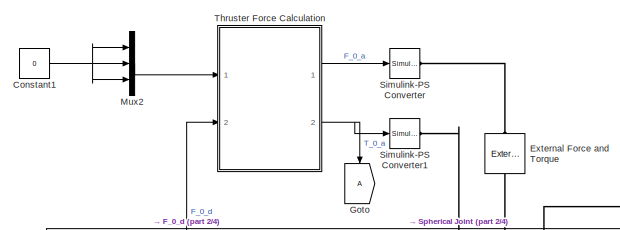
[diagram: root canvas - part 1/4, top center region]
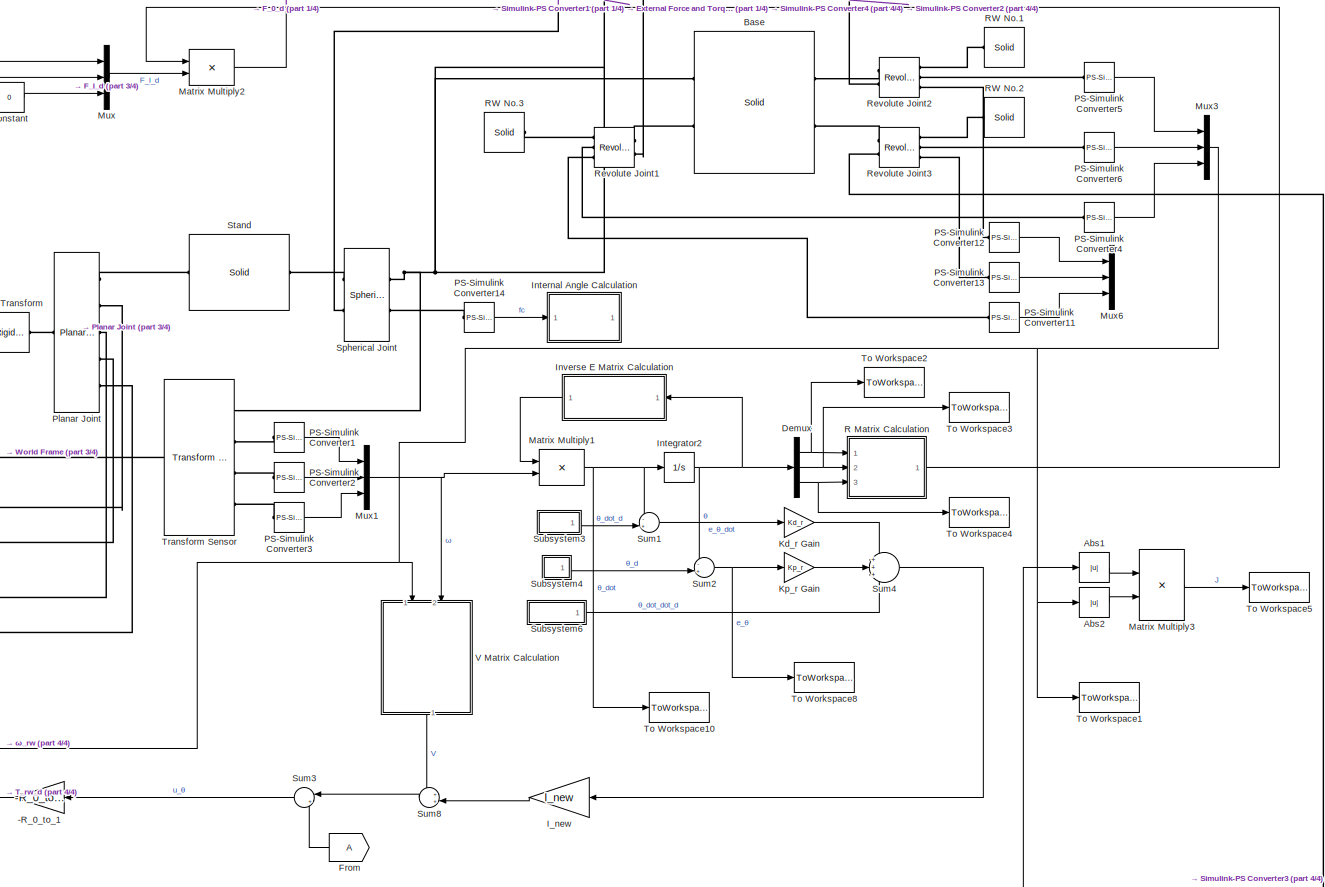
[diagram: root canvas - part 2/4, central region]
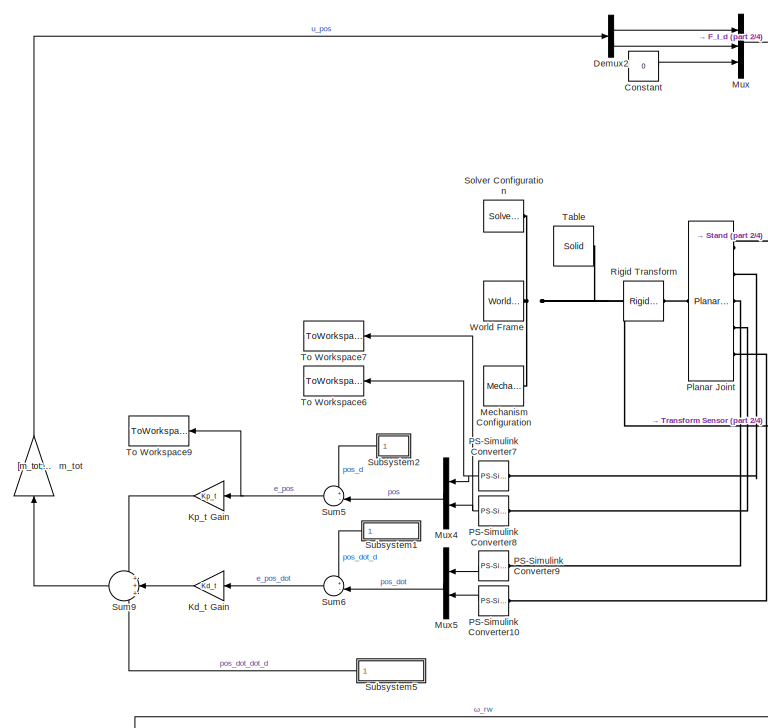
[diagram: root canvas - part 3/4, middle left region]
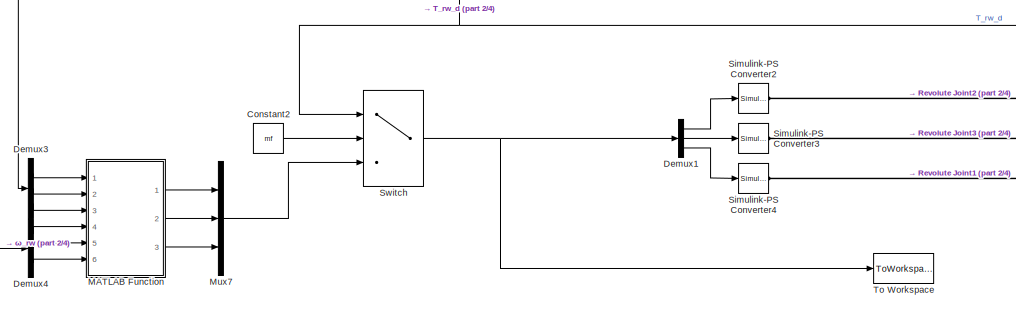
[diagram: root canvas - part 4/4, bottom left region]
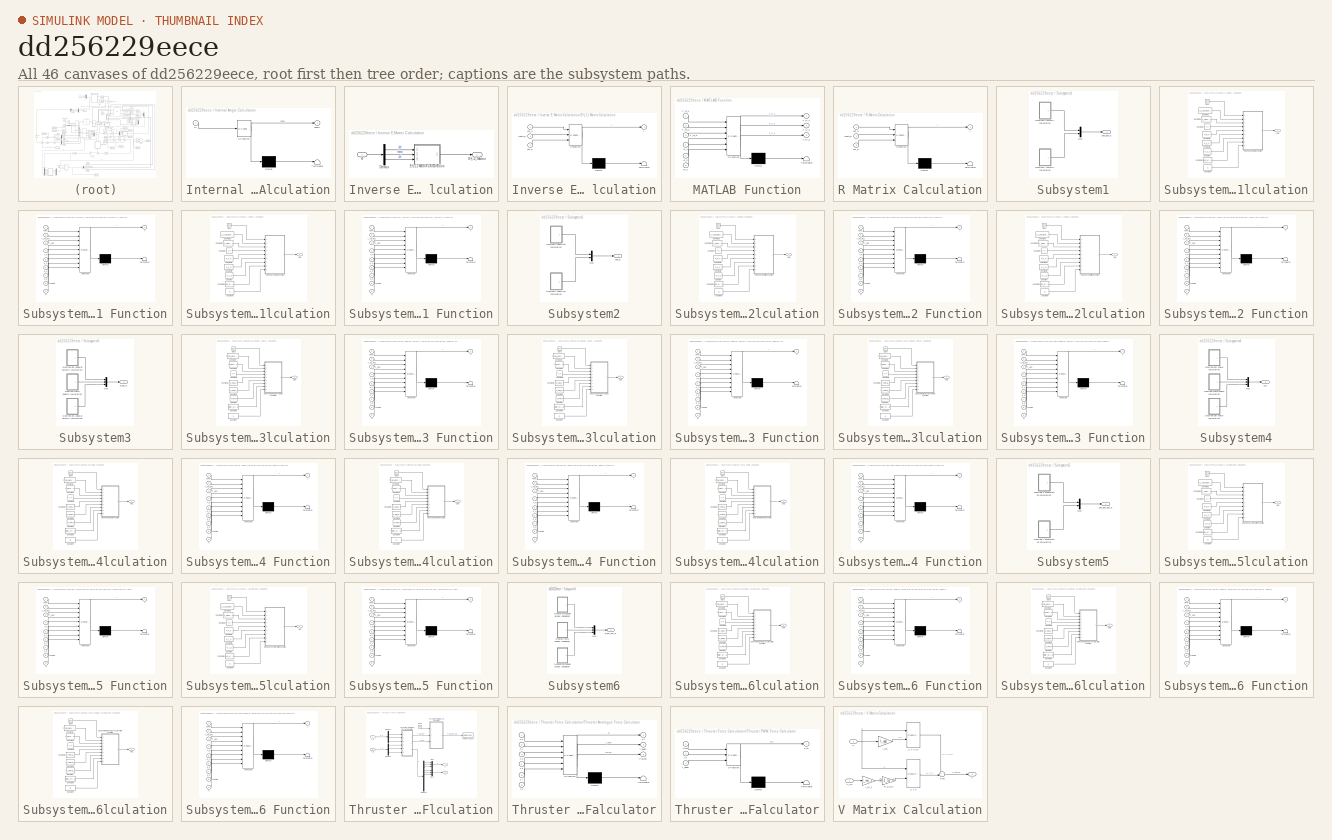
[diagram: thumbnail index - all 46 canvases of the model, root first then tree order]
MODEL slx_dd256229eece
KIND model
CONFIG AbsTol = auto
CONFIG EnableMultiTasking = off
CONFIG FixedStep = auto
CONFIG MaxStep = 0.001
CONFIG MinStep = auto
CONFIG RelTol = auto
CONFIG SampleTimeConstraint = Unconstrained
CONFIG Solver = VariableStepAuto
CONFIG SolverName = VariableStepAuto
CONFIG StartTime = 0.0
CONFIG StopTime = T_v(n+1)
BLOCK [Gain] -R_0_to_1
  Gain = -R_0_to_1
  Multiplication = Matrix(K*u) (u vector)
  OutDataTypeStr = Inherit: Inherit via internal rule
  ParamDataTypeStr = Inherit: Inherit via internal rule
  SaturateOnIntegerOverflow = off
BLOCK [Abs] Abs1
  SaturateOnIntegerOverflow = off
BLOCK [Abs] Abs2
  SaturateOnIntegerOverflow = off
BLOCK [Reference] Base  REF=sm_lib/Body Elements/Solid
  Ports = [0, 0, 0, 0, 0, 2, 2]
  SourceBlock = sm_lib/Body Elements/Solid
  SourceProductBaseCode = MS
  SourceProductName = Simscape Multibody
  SourceType = Solid
BLOCK [Constant] Constant
  Value = 0
BLOCK [Constant] Constant1
  Value = 0
BLOCK [Constant] Constant2
  Value = mf
BLOCK [Demux] Demux
  DisplayOption = bar
  Outputs = 3
  Ports = [1, 3]
BLOCK [Demux] Demux1
  DisplayOption = bar
  Outputs = 3
  Ports = [1, 3]
BLOCK [Demux] Demux2
  DisplayOption = bar
  Outputs = 2
  Ports = [1, 2]
BLOCK [Demux] Demux3
  DisplayOption = bar
  Outputs = 3
  Ports = [1, 3]
BLOCK [Demux] Demux4
  DisplayOption = bar
  Outputs = 3
  Ports = [1, 3]
BLOCK [Reference] External Force and Torque  REF=sm_lib/Forces and
Torques/External Force
and Torque
  Ports = [0, 0, 0, 0, 0, 1, 1]
  SourceBlock = sm_lib/Forces and\nTorques/External Force\nand Torque
  SourceProductBaseCode = MS
  SourceProductName = Simscape Multibody
  SourceType = External Force\nand Torque
BLOCK [From] From
BLOCK [Goto] Goto
BLOCK [Gain] I_new
  Gain = I_new
  Multiplication = Matrix(K*u) (u vector)
  OutDataTypeStr = Inherit: Inherit via internal rule
  ParamDataTypeStr = Inherit: Inherit via internal rule
  SaturateOnIntegerOverflow = off
BLOCK [Integrator] Integrator2
  Ports = [1, 1]
BLOCK [SubSystem] Internal Angle Calculation
  ErrorFcn = Stateflow.Translate.translate
  PermitHierarchicalResolution = ExplicitOnly
  Ports = [1, 1]
  RequestExecContextInheritance = off
  SFBlockType = MATLAB Function
  TreatAsAtomicUnit = on
BLOCK [Demux] Internal Angle Calculation/ Demux 
  Outputs = 1
  Ports = [1, 1]
BLOCK [S-Function] Internal Angle Calculation/ SFunction 
  EnableBusSupport = on
  FunctionName = sf_sfun
  PortCounts = [1 2]
  Ports = [1, 2]
  SFcnIsStateOwnerBlock = off
  SFunctionDeploymentMode = off
  Tag = Stateflow S-Function Simulink_Model 18
BLOCK [Terminator] Internal Angle Calculation/ Terminator 
BLOCK [Outport] Internal Angle Calculation/angle
  IconDisplay = Port number
BLOCK [Inport] Internal Angle Calculation/fc
  IconDisplay = Port number
BLOCK [SubSystem] Inverse E Matrix Calculation
  Ports = [1, 1]
  RequestExecContextInheritance = off
BLOCK [Demux] Inverse E Matrix Calculation/Demux
  DisplayOption = bar
  Outputs = 3
  Ports = [1, 3]
BLOCK [Outport] Inverse E Matrix Calculation/E^(-1) Matrix
  IconDisplay = Port number
BLOCK [SubSystem] Inverse E Matrix Calculation/E^(-1) Matrix Calculation
  ErrorFcn = Stateflow.Translate.translate
  PermitHierarchicalResolution = ExplicitOnly
  Ports = [3, 1]
  RequestExecContextInheritance = off
  SFBlockType = MATLAB Function
  TreatAsAtomicUnit = on
BLOCK [Demux] Inverse E Matrix Calculation/E^(-1) Matrix Calculation/ Demux 
  Outputs = 1
  Ports = [1, 1]
BLOCK [S-Function] Inverse E Matrix Calculation/E^(-1) Matrix Calculation/ SFunction 
  EnableBusSupport = on
  FunctionName = sf_sfun
  PortCounts = [3 2]
  Ports = [3, 2]
  SFcnIsStateOwnerBlock = off
  SFunctionDeploymentMode = off
  Tag = Stateflow S-Function Simulink_Model 2
BLOCK [Terminator] Inverse E Matrix Calculation/E^(-1) Matrix Calculation/ Terminator 
BLOCK [Inport] Inverse E Matrix Calculation/E^(-1) Matrix Calculation/phi_a
  IconDisplay = Port number
BLOCK [Inport] Inverse E Matrix Calculation/E^(-1) Matrix Calculation/psi_a
  IconDisplay = Port number
  Port = 3
BLOCK [Inport] Inverse E Matrix Calculation/E^(-1) Matrix Calculation/theta_a
  IconDisplay = Port number
  Port = 2
BLOCK [Outport] Inverse E Matrix Calculation/E^(-1) Matrix Calculation/y
  IconDisplay = Port number
BLOCK [Inport] Inverse E Matrix Calculation/θ
  IconDisplay = Port number
BLOCK [Gain] Kd_r Gain
  Gain = Kd_r
  OutDataTypeStr = Inherit: Inherit via internal rule
  ParamDataTypeStr = Inherit: Inherit via internal rule
  SaturateOnIntegerOverflow = off
BLOCK [Gain] Kd_t Gain
  Gain = Kd_t
  OutDataTypeStr = Inherit: Inherit via internal rule
  ParamDataTypeStr = Inherit: Inherit via internal rule
  SaturateOnIntegerOverflow = off
BLOCK [Gain] Kp_r Gain
  Gain = Kp_r
  OutDataTypeStr = Inherit: Inherit via internal rule
  ParamDataTypeStr = Inherit: Inherit via internal rule
  SaturateOnIntegerOverflow = off
BLOCK [Gain] Kp_t Gain
  Gain = Kp_t
  OutDataTypeStr = Inherit: Inherit via internal rule
  ParamDataTypeStr = Inherit: Inherit via internal rule
  SaturateOnIntegerOverflow = off
BLOCK [SubSystem] MATLAB Function
  ErrorFcn = Stateflow.Translate.translate
  PermitHierarchicalResolution = ExplicitOnly
  Ports = [6, 3]
  RequestExecContextInheritance = off
  SFBlockType = MATLAB Function
  TreatAsAtomicUnit = on
BLOCK [Demux] MATLAB Function/ Demux 
  Outputs = 1
  Ports = [1, 1]
BLOCK [S-Function] MATLAB Function/ SFunction 
  EnableBusSupport = on
  FunctionName = sf_sfun
  PortCounts = [6 4]
  Ports = [6, 4]
  SFcnIsStateOwnerBlock = off
  SFunctionDeploymentMode = off
  Tag = Stateflow S-Function Simulink_Model 17
BLOCK [Terminator] MATLAB Function/ Terminator 
BLOCK [Inport] MATLAB Function/T_th_1
  IconDisplay = Port number
BLOCK [Inport] MATLAB Function/T_th_2
  IconDisplay = Port number
  Port = 2
BLOCK [Inport] MATLAB Function/T_th_3
  IconDisplay = Port number
  Port = 3
BLOCK [Outport] MATLAB Function/T_tr_1
  IconDisplay = Port number
BLOCK [Outport] MATLAB Function/T_tr_2
  IconDisplay = Port number
  Port = 2
BLOCK [Outport] MATLAB Function/T_tr_3
  IconDisplay = Port number
  Port = 3
BLOCK [Inport] MATLAB Function/w_1
  IconDisplay = Port number
  Port = 4
BLOCK [Inport] MATLAB Function/w_2
  IconDisplay = Port number
  Port = 5
BLOCK [Inport] MATLAB Function/w_3
  IconDisplay = Port number
  Port = 6
BLOCK [Product] Matrix Multiply1
  InputSameDT = off
  Multiplication = Matrix(*)
  OutDataTypeStr = Inherit: Inherit via internal rule
  Ports = [2, 1]
  RndMeth = Floor
  SaturateOnIntegerOverflow = off
BLOCK [Product] Matrix Multiply2
  InputSameDT = off
  Multiplication = Matrix(*)
  OutDataTypeStr = Inherit: Inherit via internal rule
  Ports = [2, 1]
  RndMeth = Floor
  SaturateOnIntegerOverflow = off
BLOCK [Product] Matrix Multiply3
  InputSameDT = off
  OutDataTypeStr = Inherit: Inherit via internal rule
  Ports = [2, 1]
  RndMeth = Floor
  SaturateOnIntegerOverflow = off
BLOCK [Reference] Mechanism Configuration  REF=sm_lib/Utilities/Mechanism
Configuration
  Ports = [0, 0, 0, 0, 0, 0, 1]
  SourceBlock = sm_lib/Utilities/Mechanism\nConfiguration
  SourceProductBaseCode = MS
  SourceProductName = Simscape Multibody
  SourceType = Mechanism\nConfiguration
BLOCK [Mux] Mux
  DisplayOption = bar
  Inputs = 3
  Ports = [3, 1]
BLOCK [Mux] Mux1
  DisplayOption = bar
  Inputs = 3
  Ports = [3, 1]
BLOCK [Mux] Mux2
  DisplayOption = bar
  Inputs = 3
  Ports = [3, 1]
BLOCK [Mux] Mux3
  DisplayOption = bar
  Inputs = 3
  Ports = [3, 1]
BLOCK [Mux] Mux4
  DisplayOption = bar
  Inputs = 2
  Ports = [2, 1]
BLOCK [Mux] Mux5
  DisplayOption = bar
  Inputs = 2
  Ports = [2, 1]
BLOCK [Mux] Mux6
  DisplayOption = bar
  Inputs = 3
  Ports = [3, 1]
BLOCK [Mux] Mux7
  DisplayOption = bar
  Inputs = 3
  Ports = [3, 1]
BLOCK [Reference] PS-Simulink Converter1  REF=nesl_utility/PS-Simulink
Converter
  Ports = [0, 1, 0, 0, 0, 1]
  SourceBlock = nesl_utility/PS-Simulink\nConverter
  SourceProductBaseCode = SS
  SourceProductName = Simscape
  SourceType = PS-Simulink\nConverter
BLOCK [Reference] PS-Simulink Converter10  REF=nesl_utility/PS-Simulink
Converter
  Ports = [0, 1, 0, 0, 0, 1]
  SourceBlock = nesl_utility/PS-Simulink\nConverter
  SourceProductBaseCode = SS
  SourceProductName = Simscape
  SourceType = PS-Simulink\nConverter
BLOCK [Reference] PS-Simulink Converter11  REF=nesl_utility/PS-Simulink
Converter
  Ports = [0, 1, 0, 0, 0, 1]
  SourceBlock = nesl_utility/PS-Simulink\nConverter
  SourceProductBaseCode = SS
  SourceProductName = Simscape
  SourceType = PS-Simulink\nConverter
BLOCK [Reference] PS-Simulink Converter12  REF=nesl_utility/PS-Simulink
Converter
  Ports = [0, 1, 0, 0, 0, 1]
  SourceBlock = nesl_utility/PS-Simulink\nConverter
  SourceProductBaseCode = SS
  SourceProductName = Simscape
  SourceType = PS-Simulink\nConverter
BLOCK [Reference] PS-Simulink Converter13  REF=nesl_utility/PS-Simulink
Converter
  Ports = [0, 1, 0, 0, 0, 1]
  SourceBlock = nesl_utility/PS-Simulink\nConverter
  SourceProductBaseCode = SS
  SourceProductName = Simscape
  SourceType = PS-Simulink\nConverter
BLOCK [Reference] PS-Simulink Converter14  REF=nesl_utility/PS-Simulink
Converter
  Ports = [0, 1, 0, 0, 0, 1]
  SourceBlock = nesl_utility/PS-Simulink\nConverter
  SourceProductBaseCode = SS
  SourceProductName = Simscape
  SourceType = PS-Simulink\nConverter
BLOCK [Reference] PS-Simulink Converter2  REF=nesl_utility/PS-Simulink
Converter
  Ports = [0, 1, 0, 0, 0, 1]
  SourceBlock = nesl_utility/PS-Simulink\nConverter
  SourceProductBaseCode = SS
  SourceProductName = Simscape
  SourceType = PS-Simulink\nConverter
BLOCK [Reference] PS-Simulink Converter3  REF=nesl_utility/PS-Simulink
Converter
  Ports = [0, 1, 0, 0, 0, 1]
  SourceBlock = nesl_utility/PS-Simulink\nConverter
  SourceProductBaseCode = SS
  SourceProductName = Simscape
  SourceType = PS-Simulink\nConverter
BLOCK [Reference] PS-Simulink Converter4  REF=nesl_utility/PS-Simulink
Converter
  Ports = [0, 1, 0, 0, 0, 1]
  SourceBlock = nesl_utility/PS-Simulink\nConverter
  SourceProductBaseCode = SS
  SourceProductName = Simscape
  SourceType = PS-Simulink\nConverter
BLOCK [Reference] PS-Simulink Converter5  REF=nesl_utility/PS-Simulink
Converter
  Ports = [0, 1, 0, 0, 0, 1]
  SourceBlock = nesl_utility/PS-Simulink\nConverter
  SourceProductBaseCode = SS
  SourceProductName = Simscape
  SourceType = PS-Simulink\nConverter
BLOCK [Reference] PS-Simulink Converter6  REF=nesl_utility/PS-Simulink
Converter
  Ports = [0, 1, 0, 0, 0, 1]
  SourceBlock = nesl_utility/PS-Simulink\nConverter
  SourceProductBaseCode = SS
  SourceProductName = Simscape
  SourceType = PS-Simulink\nConverter
BLOCK [Reference] PS-Simulink Converter7  REF=nesl_utility/PS-Simulink
Converter
  Ports = [0, 1, 0, 0, 0, 1]
  SourceBlock = nesl_utility/PS-Simulink\nConverter
  SourceProductBaseCode = SS
  SourceProductName = Simscape
  SourceType = PS-Simulink\nConverter
BLOCK [Reference] PS-Simulink Converter8  REF=nesl_utility/PS-Simulink
Converter
  Ports = [0, 1, 0, 0, 0, 1]
  SourceBlock = nesl_utility/PS-Simulink\nConverter
  SourceProductBaseCode = SS
  SourceProductName = Simscape
  SourceType = PS-Simulink\nConverter
BLOCK [Reference] PS-Simulink Converter9  REF=nesl_utility/PS-Simulink
Converter
  Ports = [0, 1, 0, 0, 0, 1]
  SourceBlock = nesl_utility/PS-Simulink\nConverter
  SourceProductBaseCode = SS
  SourceProductName = Simscape
  SourceType = PS-Simulink\nConverter
BLOCK [Reference] Planar Joint  REF=sm_lib/Joints/Planar Joint
  Ports = [0, 0, 0, 0, 0, 1, 5]
  SourceBlock = sm_lib/Joints/Planar Joint
  SourceProductBaseCode = MS
  SourceProductName = Simscape Multibody
  SourceType = Planar Joint
BLOCK [SubSystem] R Matrix Calculation
  ErrorFcn = Stateflow.Translate.translate
  PermitHierarchicalResolution = ExplicitOnly
  Ports = [3, 1]
  RequestExecContextInheritance = off
  SFBlockType = MATLAB Function
  TreatAsAtomicUnit = on
BLOCK [Demux] R Matrix Calculation/ Demux 
  Outputs = 1
  Ports = [1, 1]
BLOCK [S-Function] R Matrix Calculation/ SFunction 
  EnableBusSupport = on
  FunctionName = sf_sfun
  PortCounts = [3 2]
  Ports = [3, 2]
  SFcnIsStateOwnerBlock = off
  SFunctionDeploymentMode = off
  Tag = Stateflow S-Function Simulink_Model 1
BLOCK [Terminator] R Matrix Calculation/ Terminator 
BLOCK [Inport] R Matrix Calculation/phi_a
  IconDisplay = Port number
BLOCK [Inport] R Matrix Calculation/psi_a
  IconDisplay = Port number
  Port = 3
BLOCK [Inport] R Matrix Calculation/theta_a
  IconDisplay = Port number
  Port = 2
BLOCK [Outport] R Matrix Calculation/y
  IconDisplay = Port number
BLOCK [Reference] RW No.1  REF=sm_lib/Body Elements/Solid
  Ports = [0, 0, 0, 0, 0, 1]
  SourceBlock = sm_lib/Body Elements/Solid
  SourceProductBaseCode = MS
  SourceProductName = Simscape Multibody
  SourceType = Solid
BLOCK [Reference] RW No.2  REF=sm_lib/Body Elements/Solid
  Ports = [0, 0, 0, 0, 0, 1]
  SourceBlock = sm_lib/Body Elements/Solid
  SourceProductBaseCode = MS
  SourceProductName = Simscape Multibody
  SourceType = Solid
BLOCK [Reference] RW No.3  REF=sm_lib/Body Elements/Solid
  Ports = [0, 0, 0, 0, 0, 1]
  SourceBlock = sm_lib/Body Elements/Solid
  SourceProductBaseCode = MS
  SourceProductName = Simscape Multibody
  SourceType = Solid
BLOCK [Reference] Revolute Joint1  REF=sm_lib/Joints/Revolute Joint
  Ports = [0, 0, 0, 0, 0, 2, 3]
  SourceBlock = sm_lib/Joints/Revolute Joint
  SourceProductBaseCode = MS
  SourceProductName = Simscape Multibody
  SourceType = Revolute Joint
BLOCK [Reference] Revolute Joint2  REF=sm_lib/Joints/Revolute Joint
  Ports = [0, 0, 0, 0, 0, 2, 3]
  SourceBlock = sm_lib/Joints/Revolute Joint
  SourceProductBaseCode = MS
  SourceProductName = Simscape Multibody
  SourceType = Revolute Joint
BLOCK [Reference] Revolute Joint3  REF=sm_lib/Joints/Revolute Joint
  Ports = [0, 0, 0, 0, 0, 2, 3]
  SourceBlock = sm_lib/Joints/Revolute Joint
  SourceProductBaseCode = MS
  SourceProductName = Simscape Multibody
  SourceType = Revolute Joint
BLOCK [Reference] Rigid Transform  REF=sm_lib/Frames and
Transforms/Rigid
Transform
  Ports = [0, 0, 0, 0, 0, 1, 1]
  SourceBlock = sm_lib/Frames and\nTransforms/Rigid\nTransform
  SourceProductBaseCode = MS
  SourceProductName = Simscape Multibody
  SourceType = Rigid\nTransform
BLOCK [Reference] Simulink-PS Converter  REF=nesl_utility/Simulink-PS
Converter
  Ports = [1, 0, 0, 0, 0, 0, 1]
  SourceBlock = nesl_utility/Simulink-PS\nConverter
  SourceProductBaseCode = SS
  SourceProductName = Simscape
  SourceType = Simulink-PS\nConverter
BLOCK [Reference] Simulink-PS Converter1  REF=nesl_utility/Simulink-PS
Converter
  Ports = [1, 0, 0, 0, 0, 0, 1]
  SourceBlock = nesl_utility/Simulink-PS\nConverter
  SourceProductBaseCode = SS
  SourceProductName = Simscape
  SourceType = Simulink-PS\nConverter
BLOCK [Reference] Simulink-PS Converter2  REF=nesl_utility/Simulink-PS
Converter
  Ports = [1, 0, 0, 0, 0, 0, 1]
  SourceBlock = nesl_utility/Simulink-PS\nConverter
  SourceProductBaseCode = SS
  SourceProductName = Simscape
  SourceType = Simulink-PS\nConverter
BLOCK [Reference] Simulink-PS Converter3  REF=nesl_utility/Simulink-PS
Converter
  Ports = [1, 0, 0, 0, 0, 0, 1]
  SourceBlock = nesl_utility/Simulink-PS\nConverter
  SourceProductBaseCode = SS
  SourceProductName = Simscape
  SourceType = Simulink-PS\nConverter
BLOCK [Reference] Simulink-PS Converter4  REF=nesl_utility/Simulink-PS
Converter
  Ports = [1, 0, 0, 0, 0, 0, 1]
  SourceBlock = nesl_utility/Simulink-PS\nConverter
  SourceProductBaseCode = SS
  SourceProductName = Simscape
  SourceType = Simulink-PS\nConverter
BLOCK [Reference] Solver Configuration  REF=nesl_utility/Solver
Configuration
  Ports = [0, 0, 0, 0, 0, 0, 1]
  SourceBlock = nesl_utility/Solver\nConfiguration
  SourceProductBaseCode = SS
  SourceProductName = Simscape
  SourceType = Solver\nConfiguration
BLOCK [Reference] Spherical Joint  REF=sm_lib/Joints/Spherical
Joint
  Ports = [0, 0, 0, 0, 0, 2, 2]
  SourceBlock = sm_lib/Joints/Spherical\nJoint
  SourceProductBaseCode = MS
  SourceProductName = Simscape Multibody
  SourceType = Spherical\nJoint
BLOCK [Reference] Stand  REF=sm_lib/Body Elements/Solid
  Ports = [0, 0, 0, 0, 0, 1, 1]
  SourceBlock = sm_lib/Body Elements/Solid
  SourceProductBaseCode = MS
  SourceProductName = Simscape Multibody
  SourceType = Solid
BLOCK [SubSystem] Subsystem1
  Ports = [0, 1]
  RequestExecContextInheritance = off
BLOCK [SubSystem] Subsystem1/Desired x velocity calculation
  Ports = [0, 1]
  RequestExecContextInheritance = off
BLOCK [Clock] Subsystem1/Desired x velocity calculation/Clock
BLOCK [Constant] Subsystem1/Desired x velocity calculation/Constant
  Value = k_x_3
BLOCK [Constant] Subsystem1/Desired x velocity calculation/Constant1
  Value = t_t_no_acc(:,1)
BLOCK [Constant] Subsystem1/Desired x velocity calculation/Constant2
  Value = t_t_acc(:,1)
BLOCK [Constant] Subsystem1/Desired x velocity calculation/Constant3
  Value = k_x_1
BLOCK [Constant] Subsystem1/Desired x velocity calculation/Constant4
  Value = T_v
BLOCK [Constant] Subsystem1/Desired x velocity calculation/Constant5
  Value = k_x_2
BLOCK [Constant] Subsystem1/Desired x velocity calculation/Constant6
  Value = pos_v(:,1)
BLOCK [Constant] Subsystem1/Desired x velocity calculation/Constant7
  Value = n
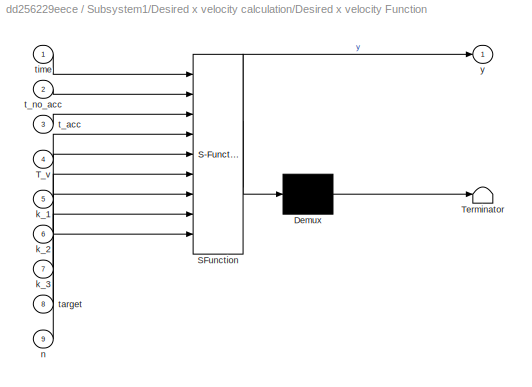
BLOCK [SubSystem] Subsystem1/Desired x velocity calculation/Desired x velocity Function
  ErrorFcn = Stateflow.Translate.translate
  PermitHierarchicalResolution = ExplicitOnly
  Ports = [9, 1]
  RequestExecContextInheritance = off
  SFBlockType = MATLAB Function
  TreatAsAtomicUnit = on
BLOCK [Demux] Subsystem1/Desired x velocity calculation/Desired x velocity Function/ Demux 
  Outputs = 1
  Ports = [1, 1]
BLOCK [S-Function] Subsystem1/Desired x velocity calculation/Desired x velocity Function/ SFunction 
  EnableBusSupport = on
  FunctionName = sf_sfun
  PortCounts = [9 2]
  Ports = [9, 2]
  SFcnIsStateOwnerBlock = off
  SFunctionDeploymentMode = off
  Tag = Stateflow S-Function Simulink_Model 6
BLOCK [Terminator] Subsystem1/Desired x velocity calculation/Desired x velocity Function/ Terminator 
BLOCK [Inport] Subsystem1/Desired x velocity calculation/Desired x velocity Function/T_v
  IconDisplay = Port number
  Port = 4
BLOCK [Inport] Subsystem1/Desired x velocity calculation/Desired x velocity Function/k_1
  IconDisplay = Port number
  Port = 5
BLOCK [Inport] Subsystem1/Desired x velocity calculation/Desired x velocity Function/k_2
  IconDisplay = Port number
  Port = 6
BLOCK [Inport] Subsystem1/Desired x velocity calculation/Desired x velocity Function/k_3
  IconDisplay = Port number
  Port = 7
BLOCK [Inport] Subsystem1/Desired x velocity calculation/Desired x velocity Function/n
  IconDisplay = Port number
  Port = 9
BLOCK [Inport] Subsystem1/Desired x velocity calculation/Desired x velocity Function/t_acc
  IconDisplay = Port number
  Port = 3
BLOCK [Inport] Subsystem1/Desired x velocity calculation/Desired x velocity Function/t_no_acc
  IconDisplay = Port number
  Port = 2
BLOCK [Inport] Subsystem1/Desired x velocity calculation/Desired x velocity Function/target
  IconDisplay = Port number
  Port = 8
BLOCK [Inport] Subsystem1/Desired x velocity calculation/Desired x velocity Function/time
  IconDisplay = Port number
BLOCK [Outport] Subsystem1/Desired x velocity calculation/Desired x velocity Function/y
  IconDisplay = Port number
BLOCK [Outport] Subsystem1/Desired x velocity calculation/Out1
  IconDisplay = Port number
BLOCK [SubSystem] Subsystem1/Desired y velocity calculation
  Ports = [0, 1]
  RequestExecContextInheritance = off
BLOCK [Clock] Subsystem1/Desired y velocity calculation/Clock
BLOCK [Constant] Subsystem1/Desired y velocity calculation/Constant
  Value = k_y_3
BLOCK [Constant] Subsystem1/Desired y velocity calculation/Constant1
  Value = t_t_no_acc(:,2)
BLOCK [Constant] Subsystem1/Desired y velocity calculation/Constant2
  Value = t_t_acc(:,2)
BLOCK [Constant] Subsystem1/Desired y velocity calculation/Constant3
  Value = k_y_1
BLOCK [Constant] Subsystem1/Desired y velocity calculation/Constant4
  Value = T_v
BLOCK [Constant] Subsystem1/Desired y velocity calculation/Constant5
  Value = k_y_2
BLOCK [Constant] Subsystem1/Desired y velocity calculation/Constant6
  Value = pos_v(:,2)
BLOCK [Constant] Subsystem1/Desired y velocity calculation/Constant7
  Value = n
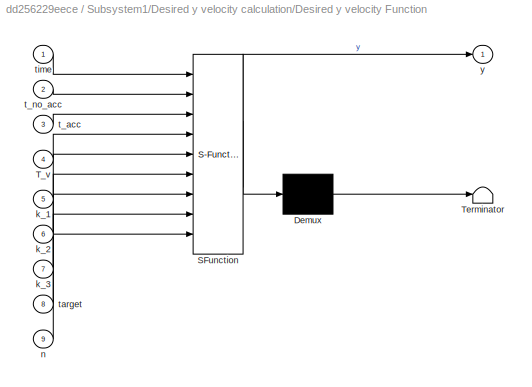
BLOCK [SubSystem] Subsystem1/Desired y velocity calculation/Desired y velocity Function
  ErrorFcn = Stateflow.Translate.translate
  PermitHierarchicalResolution = ExplicitOnly
  Ports = [9, 1]
  RequestExecContextInheritance = off
  SFBlockType = MATLAB Function
  TreatAsAtomicUnit = on
BLOCK [Demux] Subsystem1/Desired y velocity calculation/Desired y velocity Function/ Demux 
  Outputs = 1
  Ports = [1, 1]
BLOCK [S-Function] Subsystem1/Desired y velocity calculation/Desired y velocity Function/ SFunction 
  EnableBusSupport = on
  FunctionName = sf_sfun
  PortCounts = [9 2]
  Ports = [9, 2]
  SFcnIsStateOwnerBlock = off
  SFunctionDeploymentMode = off
  Tag = Stateflow S-Function Simulink_Model 7
BLOCK [Terminator] Subsystem1/Desired y velocity calculation/Desired y velocity Function/ Terminator 
BLOCK [Inport] Subsystem1/Desired y velocity calculation/Desired y velocity Function/T_v
  IconDisplay = Port number
  Port = 4
BLOCK [Inport] Subsystem1/Desired y velocity calculation/Desired y velocity Function/k_1
  IconDisplay = Port number
  Port = 5
BLOCK [Inport] Subsystem1/Desired y velocity calculation/Desired y velocity Function/k_2
  IconDisplay = Port number
  Port = 6
BLOCK [Inport] Subsystem1/Desired y velocity calculation/Desired y velocity Function/k_3
  IconDisplay = Port number
  Port = 7
BLOCK [Inport] Subsystem1/Desired y velocity calculation/Desired y velocity Function/n
  IconDisplay = Port number
  Port = 9
BLOCK [Inport] Subsystem1/Desired y velocity calculation/Desired y velocity Function/t_acc
  IconDisplay = Port number
  Port = 3
BLOCK [Inport] Subsystem1/Desired y velocity calculation/Desired y velocity Function/t_no_acc
  IconDisplay = Port number
  Port = 2
BLOCK [Inport] Subsystem1/Desired y velocity calculation/Desired y velocity Function/target
  IconDisplay = Port number
  Port = 8
BLOCK [Inport] Subsystem1/Desired y velocity calculation/Desired y velocity Function/time
  IconDisplay = Port number
BLOCK [Outport] Subsystem1/Desired y velocity calculation/Desired y velocity Function/y
  IconDisplay = Port number
BLOCK [Outport] Subsystem1/Desired y velocity calculation/Out1
  IconDisplay = Port number
BLOCK [Mux] Subsystem1/Mux
  DisplayOption = bar
  Inputs = 2
  Ports = [2, 1]
BLOCK [Outport] Subsystem1/pos_dot_d
  IconDisplay = Port number
BLOCK [SubSystem] Subsystem2
  Ports = [0, 1]
  RequestExecContextInheritance = off
BLOCK [SubSystem] Subsystem2/Desired x position calculation
  Ports = [0, 1]
  RequestExecContextInheritance = off
BLOCK [Clock] Subsystem2/Desired x position calculation/Clock
BLOCK [Constant] Subsystem2/Desired x position calculation/Constant
  Value = k_x_3
BLOCK [Constant] Subsystem2/Desired x position calculation/Constant1
  Value = t_t_no_acc(:,1)
BLOCK [Constant] Subsystem2/Desired x position calculation/Constant2
  Value = t_t_acc(:,1)
BLOCK [Constant] Subsystem2/Desired x position calculation/Constant3
  Value = k_x_1
BLOCK [Constant] Subsystem2/Desired x position calculation/Constant4
  Value = T_v
BLOCK [Constant] Subsystem2/Desired x position calculation/Constant5
  Value = k_x_2
BLOCK [Constant] Subsystem2/Desired x position calculation/Constant6
  Value = pos_v(:,1)
BLOCK [Constant] Subsystem2/Desired x position calculation/Constant7
  Value = n
BLOCK [SubSystem] Subsystem2/Desired x position calculation/Desired x position Function
  ErrorFcn = Stateflow.Translate.translate
  PermitHierarchicalResolution = ExplicitOnly
  Ports = [9, 1]
  RequestExecContextInheritance = off
  SFBlockType = MATLAB Function
  TreatAsAtomicUnit = on
BLOCK [Demux] Subsystem2/Desired x position calculation/Desired x position Function/ Demux 
  Outputs = 1
  Ports = [1, 1]
BLOCK [S-Function] Subsystem2/Desired x position calculation/Desired x position Function/ SFunction 
  EnableBusSupport = on
  FunctionName = sf_sfun
  PortCounts = [9 2]
  Ports = [9, 2]
  SFcnIsStateOwnerBlock = off
  SFunctionDeploymentMode = off
  Tag = Stateflow S-Function Simulink_Model 21
BLOCK [Terminator] Subsystem2/Desired x position calculation/Desired x position Function/ Terminator 
BLOCK [Inport] Subsystem2/Desired x position calculation/Desired x position Function/T_v
  IconDisplay = Port number
  Port = 4
BLOCK [Inport] Subsystem2/Desired x position calculation/Desired x position Function/k_1
  IconDisplay = Port number
  Port = 5
BLOCK [Inport] Subsystem2/Desired x position calculation/Desired x position Function/k_2
  IconDisplay = Port number
  Port = 6
BLOCK [Inport] Subsystem2/Desired x position calculation/Desired x position Function/k_3
  IconDisplay = Port number
  Port = 7
BLOCK [Inport] Subsystem2/Desired x position calculation/Desired x position Function/n
  IconDisplay = Port number
  Port = 9
BLOCK [Inport] Subsystem2/Desired x position calculation/Desired x position Function/t_acc
  IconDisplay = Port number
  Port = 3
BLOCK [Inport] Subsystem2/Desired x position calculation/Desired x position Function/t_no_acc
  IconDisplay = Port number
  Port = 2
BLOCK [Inport] Subsystem2/Desired x position calculation/Desired x position Function/target
  IconDisplay = Port number
  Port = 8
BLOCK [Inport] Subsystem2/Desired x position calculation/Desired x position Function/time
  IconDisplay = Port number
BLOCK [Outport] Subsystem2/Desired x position calculation/Desired x position Function/y
  IconDisplay = Port number
BLOCK [Outport] Subsystem2/Desired x position calculation/Out1
  IconDisplay = Port number
BLOCK [SubSystem] Subsystem2/Desired y position calculation
  Ports = [0, 1]
  RequestExecContextInheritance = off
BLOCK [Clock] Subsystem2/Desired y position calculation/Clock
BLOCK [Constant] Subsystem2/Desired y position calculation/Constant
  Value = k_y_3
BLOCK [Constant] Subsystem2/Desired y position calculation/Constant1
  Value = t_t_no_acc(:,2)
BLOCK [Constant] Subsystem2/Desired y position calculation/Constant2
  Value = t_t_acc(:,2)
BLOCK [Constant] Subsystem2/Desired y position calculation/Constant3
  Value = k_y_1
BLOCK [Constant] Subsystem2/Desired y position calculation/Constant4
  Value = T_v
BLOCK [Constant] Subsystem2/Desired y position calculation/Constant5
  Value = k_y_2
BLOCK [Constant] Subsystem2/Desired y position calculation/Constant6
  Value = pos_v(:,2)
BLOCK [Constant] Subsystem2/Desired y position calculation/Constant7
  Value = n
BLOCK [SubSystem] Subsystem2/Desired y position calculation/Desired y position Function
  ErrorFcn = Stateflow.Translate.translate
  PermitHierarchicalResolution = ExplicitOnly
  Ports = [9, 1]
  RequestExecContextInheritance = off
  SFBlockType = MATLAB Function
  TreatAsAtomicUnit = on
BLOCK [Demux] Subsystem2/Desired y position calculation/Desired y position Function/ Demux 
  Outputs = 1
  Ports = [1, 1]
BLOCK [S-Function] Subsystem2/Desired y position calculation/Desired y position Function/ SFunction 
  EnableBusSupport = on
  FunctionName = sf_sfun
  PortCounts = [9 2]
  Ports = [9, 2]
  SFcnIsStateOwnerBlock = off
  SFunctionDeploymentMode = off
  Tag = Stateflow S-Function Simulink_Model 8
BLOCK [Terminator] Subsystem2/Desired y position calculation/Desired y position Function/ Terminator 
BLOCK [Inport] Subsystem2/Desired y position calculation/Desired y position Function/T_v
  IconDisplay = Port number
  Port = 4
BLOCK [Inport] Subsystem2/Desired y position calculation/Desired y position Function/k_1
  IconDisplay = Port number
  Port = 5
BLOCK [Inport] Subsystem2/Desired y position calculation/Desired y position Function/k_2
  IconDisplay = Port number
  Port = 6
BLOCK [Inport] Subsystem2/Desired y position calculation/Desired y position Function/k_3
  IconDisplay = Port number
  Port = 7
BLOCK [Inport] Subsystem2/Desired y position calculation/Desired y position Function/n
  IconDisplay = Port number
  Port = 9
BLOCK [Inport] Subsystem2/Desired y position calculation/Desired y position Function/t_acc
  IconDisplay = Port number
  Port = 3
BLOCK [Inport] Subsystem2/Desired y position calculation/Desired y position Function/t_no_acc
  IconDisplay = Port number
  Port = 2
BLOCK [Inport] Subsystem2/Desired y position calculation/Desired y position Function/target
  IconDisplay = Port number
  Port = 8
BLOCK [Inport] Subsystem2/Desired y position calculation/Desired y position Function/time
  IconDisplay = Port number
BLOCK [Outport] Subsystem2/Desired y position calculation/Desired y position Function/y
  IconDisplay = Port number
BLOCK [Outport] Subsystem2/Desired y position calculation/Out1
  IconDisplay = Port number
BLOCK [Mux] Subsystem2/Mux
  DisplayOption = bar
  Inputs = 2
  Ports = [2, 1]
BLOCK [Outport] Subsystem2/pos_d
  IconDisplay = Port number
BLOCK [SubSystem] Subsystem3
  Ports = [0, 1]
  RequestExecContextInheritance = off
BLOCK [SubSystem] Subsystem3/Desired phi angular velocity calculation
  Ports = [0, 1]
  RequestExecContextInheritance = off
BLOCK [Clock] Subsystem3/Desired phi angular velocity calculation/Clock
BLOCK [Constant] Subsystem3/Desired phi angular velocity calculation/Constant
  Value = k_phi_3
BLOCK [Constant] Subsystem3/Desired phi angular velocity calculation/Constant1
  Value = t_no_acc(:,1)
BLOCK [Constant] Subsystem3/Desired phi angular velocity calculation/Constant2
  Value = t_acc(:,1)
BLOCK [Constant] Subsystem3/Desired phi angular velocity calculation/Constant3
  Value = k_phi_1
BLOCK [Constant] Subsystem3/Desired phi angular velocity calculation/Constant4
  Value = T_v
BLOCK [Constant] Subsystem3/Desired phi angular velocity calculation/Constant5
  Value = k_phi_2
BLOCK [Constant] Subsystem3/Desired phi angular velocity calculation/Constant6
  Value = euler_v(:,1)
BLOCK [Constant] Subsystem3/Desired phi angular velocity calculation/Constant7
  Value = n
BLOCK [SubSystem] Subsystem3/Desired phi angular velocity calculation/Desired phi angular velocity Function
  ErrorFcn = Stateflow.Translate.translate
  PermitHierarchicalResolution = ExplicitOnly
  Ports = [9, 1]
  RequestExecContextInheritance = off
  SFBlockType = MATLAB Function
  TreatAsAtomicUnit = on
BLOCK [Demux] Subsystem3/Desired phi angular velocity calculation/Desired phi angular velocity Function/ Demux 
  Outputs = 1
  Ports = [1, 1]
BLOCK [S-Function] Subsystem3/Desired phi angular velocity calculation/Desired phi angular velocity Function/ SFunction 
  EnableBusSupport = on
  FunctionName = sf_sfun
  PortCounts = [9 2]
  Ports = [9, 2]
  SFcnIsStateOwnerBlock = off
  SFunctionDeploymentMode = off
  Tag = Stateflow S-Function Simulink_Model 11
BLOCK [Terminator] Subsystem3/Desired phi angular velocity calculation/Desired phi angular velocity Function/ Terminator 
BLOCK [Inport] Subsystem3/Desired phi angular velocity calculation/Desired phi angular velocity Function/T_v
  IconDisplay = Port number
  Port = 4
BLOCK [Inport] Subsystem3/Desired phi angular velocity calculation/Desired phi angular velocity Function/k_1
  IconDisplay = Port number
  Port = 5
BLOCK [Inport] Subsystem3/Desired phi angular velocity calculation/Desired phi angular velocity Function/k_2
  IconDisplay = Port number
  Port = 6
BLOCK [Inport] Subsystem3/Desired phi angular velocity calculation/Desired phi angular velocity Function/k_3
  IconDisplay = Port number
  Port = 7
BLOCK [Inport] Subsystem3/Desired phi angular velocity calculation/Desired phi angular velocity Function/n
  IconDisplay = Port number
  Port = 9
BLOCK [Inport] Subsystem3/Desired phi angular velocity calculation/Desired phi angular velocity Function/t_acc
  IconDisplay = Port number
  Port = 3
BLOCK [Inport] Subsystem3/Desired phi angular velocity calculation/Desired phi angular velocity Function/t_no_acc
  IconDisplay = Port number
  Port = 2
BLOCK [Inport] Subsystem3/Desired phi angular velocity calculation/Desired phi angular velocity Function/target
  IconDisplay = Port number
  Port = 8
BLOCK [Inport] Subsystem3/Desired phi angular velocity calculation/Desired phi angular velocity Function/time
  IconDisplay = Port number
BLOCK [Outport] Subsystem3/Desired phi angular velocity calculation/Desired phi angular velocity Function/y
  IconDisplay = Port number
BLOCK [Outport] Subsystem3/Desired phi angular velocity calculation/Out1
  IconDisplay = Port number
BLOCK [SubSystem] Subsystem3/Desired psi angular velocity calculation
  Ports = [0, 1]
  RequestExecContextInheritance = off
BLOCK [Clock] Subsystem3/Desired psi angular velocity calculation/Clock
BLOCK [Constant] Subsystem3/Desired psi angular velocity calculation/Constant
  Value = k_psi_3
BLOCK [Constant] Subsystem3/Desired psi angular velocity calculation/Constant1
  Value = t_no_acc(:,3)
BLOCK [Constant] Subsystem3/Desired psi angular velocity calculation/Constant2
  Value = t_acc(:,3)
BLOCK [Constant] Subsystem3/Desired psi angular velocity calculation/Constant3
  Value = k_psi_1
BLOCK [Constant] Subsystem3/Desired psi angular velocity calculation/Constant4
  Value = T_v
BLOCK [Constant] Subsystem3/Desired psi angular velocity calculation/Constant5
  Value = k_psi_2
BLOCK [Constant] Subsystem3/Desired psi angular velocity calculation/Constant6
  Value = euler_v(:,3)
BLOCK [Constant] Subsystem3/Desired psi angular velocity calculation/Constant7
  Value = n
BLOCK [SubSystem] Subsystem3/Desired psi angular velocity calculation/Desired psi angular velocity Function
  ErrorFcn = Stateflow.Translate.translate
  PermitHierarchicalResolution = ExplicitOnly
  Ports = [9, 1]
  RequestExecContextInheritance = off
  SFBlockType = MATLAB Function
  TreatAsAtomicUnit = on
BLOCK [Demux] Subsystem3/Desired psi angular velocity calculation/Desired psi angular velocity Function/ Demux 
  Outputs = 1
  Ports = [1, 1]
BLOCK [S-Function] Subsystem3/Desired psi angular velocity calculation/Desired psi angular velocity Function/ SFunction 
  EnableBusSupport = on
  FunctionName = sf_sfun
  PortCounts = [9 2]
  Ports = [9, 2]
  SFcnIsStateOwnerBlock = off
  SFunctionDeploymentMode = off
  Tag = Stateflow S-Function Simulink_Model 12
BLOCK [Terminator] Subsystem3/Desired psi angular velocity calculation/Desired psi angular velocity Function/ Terminator 
BLOCK [Inport] Subsystem3/Desired psi angular velocity calculation/Desired psi angular velocity Function/T_v
  IconDisplay = Port number
  Port = 4
BLOCK [Inport] Subsystem3/Desired psi angular velocity calculation/Desired psi angular velocity Function/k_1
  IconDisplay = Port number
  Port = 5
BLOCK [Inport] Subsystem3/Desired psi angular velocity calculation/Desired psi angular velocity Function/k_2
  IconDisplay = Port number
  Port = 6
BLOCK [Inport] Subsystem3/Desired psi angular velocity calculation/Desired psi angular velocity Function/k_3
  IconDisplay = Port number
  Port = 7
BLOCK [Inport] Subsystem3/Desired psi angular velocity calculation/Desired psi angular velocity Function/n
  IconDisplay = Port number
  Port = 9
BLOCK [Inport] Subsystem3/Desired psi angular velocity calculation/Desired psi angular velocity Function/t_acc
  IconDisplay = Port number
  Port = 3
BLOCK [Inport] Subsystem3/Desired psi angular velocity calculation/Desired psi angular velocity Function/t_no_acc
  IconDisplay = Port number
  Port = 2
BLOCK [Inport] Subsystem3/Desired psi angular velocity calculation/Desired psi angular velocity Function/target
  IconDisplay = Port number
  Port = 8
BLOCK [Inport] Subsystem3/Desired psi angular velocity calculation/Desired psi angular velocity Function/time
  IconDisplay = Port number
BLOCK [Outport] Subsystem3/Desired psi angular velocity calculation/Desired psi angular velocity Function/y
  IconDisplay = Port number
BLOCK [Outport] Subsystem3/Desired psi angular velocity calculation/Out1
  IconDisplay = Port number
BLOCK [SubSystem] Subsystem3/Desired theta angular velocity calculation
  Ports = [0, 1]
  RequestExecContextInheritance = off
BLOCK [Clock] Subsystem3/Desired theta angular velocity calculation/Clock
BLOCK [Constant] Subsystem3/Desired theta angular velocity calculation/Constant
  Value = k_theta_3
BLOCK [Constant] Subsystem3/Desired theta angular velocity calculation/Constant1
  Value = t_no_acc(:,2)
BLOCK [Constant] Subsystem3/Desired theta angular velocity calculation/Constant2
  Value = t_acc(:,2)
BLOCK [Constant] Subsystem3/Desired theta angular velocity calculation/Constant3
  Value = k_theta_1
BLOCK [Constant] Subsystem3/Desired theta angular velocity calculation/Constant4
  Value = T_v
BLOCK [Constant] Subsystem3/Desired theta angular velocity calculation/Constant5
  Value = k_theta_2
BLOCK [Constant] Subsystem3/Desired theta angular velocity calculation/Constant6
  Value = euler_v(:,2)
BLOCK [Constant] Subsystem3/Desired theta angular velocity calculation/Constant7
  Value = n
BLOCK [SubSystem] Subsystem3/Desired theta angular velocity calculation/Desired theta angular velocity Function
  ErrorFcn = Stateflow.Translate.translate
  PermitHierarchicalResolution = ExplicitOnly
  Ports = [9, 1]
  RequestExecContextInheritance = off
  SFBlockType = MATLAB Function
  TreatAsAtomicUnit = on
BLOCK [Demux] Subsystem3/Desired theta angular velocity calculation/Desired theta angular velocity Function/ Demux 
  Outputs = 1
  Ports = [1, 1]
BLOCK [S-Function] Subsystem3/Desired theta angular velocity calculation/Desired theta angular velocity Function/ SFunction 
  EnableBusSupport = on
  FunctionName = sf_sfun
  PortCounts = [9 2]
  Ports = [9, 2]
  SFcnIsStateOwnerBlock = off
  SFunctionDeploymentMode = off
  Tag = Stateflow S-Function Simulink_Model 13
BLOCK [Terminator] Subsystem3/Desired theta angular velocity calculation/Desired theta angular velocity Function/ Terminator 
BLOCK [Inport] Subsystem3/Desired theta angular velocity calculation/Desired theta angular velocity Function/T_v
  IconDisplay = Port number
  Port = 4
BLOCK [Inport] Subsystem3/Desired theta angular velocity calculation/Desired theta angular velocity Function/k_1
  IconDisplay = Port number
  Port = 5
BLOCK [Inport] Subsystem3/Desired theta angular velocity calculation/Desired theta angular velocity Function/k_2
  IconDisplay = Port number
  Port = 6
BLOCK [Inport] Subsystem3/Desired theta angular velocity calculation/Desired theta angular velocity Function/k_3
  IconDisplay = Port number
  Port = 7
BLOCK [Inport] Subsystem3/Desired theta angular velocity calculation/Desired theta angular velocity Function/n
  IconDisplay = Port number
  Port = 9
BLOCK [Inport] Subsystem3/Desired theta angular velocity calculation/Desired theta angular velocity Function/t_acc
  IconDisplay = Port number
  Port = 3
BLOCK [Inport] Subsystem3/Desired theta angular velocity calculation/Desired theta angular velocity Function/t_no_acc
  IconDisplay = Port number
  Port = 2
BLOCK [Inport] Subsystem3/Desired theta angular velocity calculation/Desired theta angular velocity Function/target
  IconDisplay = Port number
  Port = 8
BLOCK [Inport] Subsystem3/Desired theta angular velocity calculation/Desired theta angular velocity Function/time
  IconDisplay = Port number
BLOCK [Outport] Subsystem3/Desired theta angular velocity calculation/Desired theta angular velocity Function/y
  IconDisplay = Port number
BLOCK [Outport] Subsystem3/Desired theta angular velocity calculation/Out1
  IconDisplay = Port number
BLOCK [Mux] Subsystem3/Mux
  DisplayOption = bar
  Inputs = 3
  Ports = [3, 1]
BLOCK [Outport] Subsystem3/θ_dot_d
  IconDisplay = Port number
BLOCK [SubSystem] Subsystem4
  Ports = [0, 1]
  RequestExecContextInheritance = off
BLOCK [SubSystem] Subsystem4/Desired phi angle calculation
  Ports = [0, 1]
  RequestExecContextInheritance = off
BLOCK [Clock] Subsystem4/Desired phi angle calculation/Clock
BLOCK [Constant] Subsystem4/Desired phi angle calculation/Constant
  Value = k_phi_3
BLOCK [Constant] Subsystem4/Desired phi angle calculation/Constant1
  Value = t_no_acc(:,1)
BLOCK [Constant] Subsystem4/Desired phi angle calculation/Constant2
  Value = t_acc(:,1)
BLOCK [Constant] Subsystem4/Desired phi angle calculation/Constant3
  Value = k_phi_1
BLOCK [Constant] Subsystem4/Desired phi angle calculation/Constant4
  Value = T_v
BLOCK [Constant] Subsystem4/Desired phi angle calculation/Constant5
  Value = k_phi_2
BLOCK [Constant] Subsystem4/Desired phi angle calculation/Constant6
  Value = euler_v(:,1)
BLOCK [Constant] Subsystem4/Desired phi angle calculation/Constant7
  Value = n
BLOCK [SubSystem] Subsystem4/Desired phi angle calculation/Desired phi angle Function
  ErrorFcn = Stateflow.Translate.translate
  PermitHierarchicalResolution = ExplicitOnly
  Ports = [9, 1]
  RequestExecContextInheritance = off
  SFBlockType = MATLAB Function
  TreatAsAtomicUnit = on
BLOCK [Demux] Subsystem4/Desired phi angle calculation/Desired phi angle Function/ Demux 
  Outputs = 1
  Ports = [1, 1]
BLOCK [S-Function] Subsystem4/Desired phi angle calculation/Desired phi angle Function/ SFunction 
  EnableBusSupport = on
  FunctionName = sf_sfun
  PortCounts = [9 2]
  Ports = [9, 2]
  SFcnIsStateOwnerBlock = off
  SFunctionDeploymentMode = off
  Tag = Stateflow S-Function Simulink_Model 14
BLOCK [Terminator] Subsystem4/Desired phi angle calculation/Desired phi angle Function/ Terminator 
BLOCK [Inport] Subsystem4/Desired phi angle calculation/Desired phi angle Function/T_v
  IconDisplay = Port number
  Port = 4
BLOCK [Inport] Subsystem4/Desired phi angle calculation/Desired phi angle Function/k_1
  IconDisplay = Port number
  Port = 5
BLOCK [Inport] Subsystem4/Desired phi angle calculation/Desired phi angle Function/k_2
  IconDisplay = Port number
  Port = 6
BLOCK [Inport] Subsystem4/Desired phi angle calculation/Desired phi angle Function/k_3
  IconDisplay = Port number
  Port = 7
BLOCK [Inport] Subsystem4/Desired phi angle calculation/Desired phi angle Function/n
  IconDisplay = Port number
  Port = 9
BLOCK [Inport] Subsystem4/Desired phi angle calculation/Desired phi angle Function/t_acc
  IconDisplay = Port number
  Port = 3
BLOCK [Inport] Subsystem4/Desired phi angle calculation/Desired phi angle Function/t_no_acc
  IconDisplay = Port number
  Port = 2
BLOCK [Inport] Subsystem4/Desired phi angle calculation/Desired phi angle Function/target
  IconDisplay = Port number
  Port = 8
BLOCK [Inport] Subsystem4/Desired phi angle calculation/Desired phi angle Function/time
  IconDisplay = Port number
BLOCK [Outport] Subsystem4/Desired phi angle calculation/Desired phi angle Function/y
  IconDisplay = Port number
BLOCK [Outport] Subsystem4/Desired phi angle calculation/Out1
  IconDisplay = Port number
BLOCK [SubSystem] Subsystem4/Desired psi angle calculation
  Ports = [0, 1]
  RequestExecContextInheritance = off
BLOCK [Clock] Subsystem4/Desired psi angle calculation/Clock
BLOCK [Constant] Subsystem4/Desired psi angle calculation/Constant
  Value = k_psi_3
BLOCK [Constant] Subsystem4/Desired psi angle calculation/Constant1
  Value = t_no_acc(:,3)
BLOCK [Constant] Subsystem4/Desired psi angle calculation/Constant2
  Value = t_acc(:,3)
BLOCK [Constant] Subsystem4/Desired psi angle calculation/Constant3
  Value = k_psi_1
BLOCK [Constant] Subsystem4/Desired psi angle calculation/Constant4
  Value = T_v
BLOCK [Constant] Subsystem4/Desired psi angle calculation/Constant5
  Value = k_psi_2
BLOCK [Constant] Subsystem4/Desired psi angle calculation/Constant6
  Value = euler_v(:,3)
BLOCK [Constant] Subsystem4/Desired psi angle calculation/Constant7
  Value = n
BLOCK [SubSystem] Subsystem4/Desired psi angle calculation/Desired psi angle Function
  ErrorFcn = Stateflow.Translate.translate
  PermitHierarchicalResolution = ExplicitOnly
  Ports = [9, 1]
  RequestExecContextInheritance = off
  SFBlockType = MATLAB Function
  TreatAsAtomicUnit = on
BLOCK [Demux] Subsystem4/Desired psi angle calculation/Desired psi angle Function/ Demux 
  Outputs = 1
  Ports = [1, 1]
BLOCK [S-Function] Subsystem4/Desired psi angle calculation/Desired psi angle Function/ SFunction 
  EnableBusSupport = on
  FunctionName = sf_sfun
  PortCounts = [9 2]
  Ports = [9, 2]
  SFcnIsStateOwnerBlock = off
  SFunctionDeploymentMode = off
  Tag = Stateflow S-Function Simulink_Model 15
BLOCK [Terminator] Subsystem4/Desired psi angle calculation/Desired psi angle Function/ Terminator 
BLOCK [Inport] Subsystem4/Desired psi angle calculation/Desired psi angle Function/T_v
  IconDisplay = Port number
  Port = 4
BLOCK [Inport] Subsystem4/Desired psi angle calculation/Desired psi angle Function/k_1
  IconDisplay = Port number
  Port = 5
BLOCK [Inport] Subsystem4/Desired psi angle calculation/Desired psi angle Function/k_2
  IconDisplay = Port number
  Port = 6
BLOCK [Inport] Subsystem4/Desired psi angle calculation/Desired psi angle Function/k_3
  IconDisplay = Port number
  Port = 7
BLOCK [Inport] Subsystem4/Desired psi angle calculation/Desired psi angle Function/n
  IconDisplay = Port number
  Port = 9
BLOCK [Inport] Subsystem4/Desired psi angle calculation/Desired psi angle Function/t_acc
  IconDisplay = Port number
  Port = 3
BLOCK [Inport] Subsystem4/Desired psi angle calculation/Desired psi angle Function/t_no_acc
  IconDisplay = Port number
  Port = 2
BLOCK [Inport] Subsystem4/Desired psi angle calculation/Desired psi angle Function/target
  IconDisplay = Port number
  Port = 8
BLOCK [Inport] Subsystem4/Desired psi angle calculation/Desired psi angle Function/time
  IconDisplay = Port number
BLOCK [Outport] Subsystem4/Desired psi angle calculation/Desired psi angle Function/y
  IconDisplay = Port number
BLOCK [Outport] Subsystem4/Desired psi angle calculation/Out1
  IconDisplay = Port number
BLOCK [SubSystem] Subsystem4/Desired theta angle calculation
  Ports = [0, 1]
  RequestExecContextInheritance = off
BLOCK [Clock] Subsystem4/Desired theta angle calculation/Clock
BLOCK [Constant] Subsystem4/Desired theta angle calculation/Constant
  Value = k_theta_3
BLOCK [Constant] Subsystem4/Desired theta angle calculation/Constant1
  Value = t_no_acc(:,2)
BLOCK [Constant] Subsystem4/Desired theta angle calculation/Constant2
  Value = t_acc(:,2)
BLOCK [Constant] Subsystem4/Desired theta angle calculation/Constant3
  Value = k_theta_1
BLOCK [Constant] Subsystem4/Desired theta angle calculation/Constant4
  Value = T_v
BLOCK [Constant] Subsystem4/Desired theta angle calculation/Constant5
  Value = k_theta_2
BLOCK [Constant] Subsystem4/Desired theta angle calculation/Constant6
  Value = euler_v(:,2)
BLOCK [Constant] Subsystem4/Desired theta angle calculation/Constant7
  Value = n
BLOCK [SubSystem] Subsystem4/Desired theta angle calculation/Desired theta angle Function
  ErrorFcn = Stateflow.Translate.translate
  PermitHierarchicalResolution = ExplicitOnly
  Ports = [9, 1]
  RequestExecContextInheritance = off
  SFBlockType = MATLAB Function
  TreatAsAtomicUnit = on
BLOCK [Demux] Subsystem4/Desired theta angle calculation/Desired theta angle Function/ Demux 
  Outputs = 1
  Ports = [1, 1]
BLOCK [S-Function] Subsystem4/Desired theta angle calculation/Desired theta angle Function/ SFunction 
  EnableBusSupport = on
  FunctionName = sf_sfun
  PortCounts = [9 2]
  Ports = [9, 2]
  SFcnIsStateOwnerBlock = off
  SFunctionDeploymentMode = off
  Tag = Stateflow S-Function Simulink_Model 5
BLOCK [Terminator] Subsystem4/Desired theta angle calculation/Desired theta angle Function/ Terminator 
BLOCK [Inport] Subsystem4/Desired theta angle calculation/Desired theta angle Function/T_v
  IconDisplay = Port number
  Port = 4
BLOCK [Inport] Subsystem4/Desired theta angle calculation/Desired theta angle Function/k_1
  IconDisplay = Port number
  Port = 5
BLOCK [Inport] Subsystem4/Desired theta angle calculation/Desired theta angle Function/k_2
  IconDisplay = Port number
  Port = 6
BLOCK [Inport] Subsystem4/Desired theta angle calculation/Desired theta angle Function/k_3
  IconDisplay = Port number
  Port = 7
BLOCK [Inport] Subsystem4/Desired theta angle calculation/Desired theta angle Function/n
  IconDisplay = Port number
  Port = 9
BLOCK [Inport] Subsystem4/Desired theta angle calculation/Desired theta angle Function/t_acc
  IconDisplay = Port number
  Port = 3
BLOCK [Inport] Subsystem4/Desired theta angle calculation/Desired theta angle Function/t_no_acc
  IconDisplay = Port number
  Port = 2
BLOCK [Inport] Subsystem4/Desired theta angle calculation/Desired theta angle Function/target
  IconDisplay = Port number
  Port = 8
BLOCK [Inport] Subsystem4/Desired theta angle calculation/Desired theta angle Function/time
  IconDisplay = Port number
BLOCK [Outport] Subsystem4/Desired theta angle calculation/Desired theta angle Function/y
  IconDisplay = Port number
BLOCK [Outport] Subsystem4/Desired theta angle calculation/Out1
  IconDisplay = Port number
BLOCK [Mux] Subsystem4/Mux
  DisplayOption = bar
  Inputs = 3
  Ports = [3, 1]
BLOCK [Outport] Subsystem4/θ_d
  IconDisplay = Port number
BLOCK [SubSystem] Subsystem5
  Ports = [0, 1]
  RequestExecContextInheritance = off
BLOCK [SubSystem] Subsystem5/Desired x acceleration calculation
  Ports = [0, 1]
  RequestExecContextInheritance = off
BLOCK [Clock] Subsystem5/Desired x acceleration calculation/Clock
BLOCK [Constant] Subsystem5/Desired x acceleration calculation/Constant
  Value = k_x_3
BLOCK [Constant] Subsystem5/Desired x acceleration calculation/Constant1
  Value = t_t_no_acc(:,1)
BLOCK [Constant] Subsystem5/Desired x acceleration calculation/Constant2
  Value = t_t_acc(:,1)
BLOCK [Constant] Subsystem5/Desired x acceleration calculation/Constant3
  Value = k_x_1
BLOCK [Constant] Subsystem5/Desired x acceleration calculation/Constant4
  Value = T_v
BLOCK [Constant] Subsystem5/Desired x acceleration calculation/Constant5
  Value = k_x_2
BLOCK [Constant] Subsystem5/Desired x acceleration calculation/Constant6
  Value = pos_v(:,1)
BLOCK [Constant] Subsystem5/Desired x acceleration calculation/Constant7
  Value = n
BLOCK [SubSystem] Subsystem5/Desired x acceleration calculation/Desired x acceleration Function
  ErrorFcn = Stateflow.Translate.translate
  PermitHierarchicalResolution = ExplicitOnly
  Ports = [9, 1]
  RequestExecContextInheritance = off
  SFBlockType = MATLAB Function
  TreatAsAtomicUnit = on
BLOCK [Demux] Subsystem5/Desired x acceleration calculation/Desired x acceleration Function/ Demux 
  Outputs = 1
  Ports = [1, 1]
BLOCK [S-Function] Subsystem5/Desired x acceleration calculation/Desired x acceleration Function/ SFunction 
  EnableBusSupport = on
  FunctionName = sf_sfun
  PortCounts = [9 2]
  Ports = [9, 2]
  SFcnIsStateOwnerBlock = off
  SFunctionDeploymentMode = off
  Tag = Stateflow S-Function Simulink_Model 9
BLOCK [Terminator] Subsystem5/Desired x acceleration calculation/Desired x acceleration Function/ Terminator 
BLOCK [Inport] Subsystem5/Desired x acceleration calculation/Desired x acceleration Function/T_v
  IconDisplay = Port number
  Port = 4
BLOCK [Inport] Subsystem5/Desired x acceleration calculation/Desired x acceleration Function/k_1
  IconDisplay = Port number
  Port = 5
BLOCK [Inport] Subsystem5/Desired x acceleration calculation/Desired x acceleration Function/k_2
  IconDisplay = Port number
  Port = 6
BLOCK [Inport] Subsystem5/Desired x acceleration calculation/Desired x acceleration Function/k_3
  IconDisplay = Port number
  Port = 7
BLOCK [Inport] Subsystem5/Desired x acceleration calculation/Desired x acceleration Function/n
  IconDisplay = Port number
  Port = 9
BLOCK [Inport] Subsystem5/Desired x acceleration calculation/Desired x acceleration Function/t_acc
  IconDisplay = Port number
  Port = 3
BLOCK [Inport] Subsystem5/Desired x acceleration calculation/Desired x acceleration Function/t_no_acc
  IconDisplay = Port number
  Port = 2
BLOCK [Inport] Subsystem5/Desired x acceleration calculation/Desired x acceleration Function/target
  IconDisplay = Port number
  Port = 8
BLOCK [Inport] Subsystem5/Desired x acceleration calculation/Desired x acceleration Function/time
  IconDisplay = Port number
BLOCK [Outport] Subsystem5/Desired x acceleration calculation/Desired x acceleration Function/y
  IconDisplay = Port number
BLOCK [Outport] Subsystem5/Desired x acceleration calculation/Out1
  IconDisplay = Port number
BLOCK [SubSystem] Subsystem5/Desired y acceleration calculation
  Ports = [0, 1]
  RequestExecContextInheritance = off
BLOCK [Clock] Subsystem5/Desired y acceleration calculation/Clock
BLOCK [Constant] Subsystem5/Desired y acceleration calculation/Constant
  Value = k_y_3
BLOCK [Constant] Subsystem5/Desired y acceleration calculation/Constant1
  Value = t_t_no_acc(:,2)
BLOCK [Constant] Subsystem5/Desired y acceleration calculation/Constant2
  Value = t_t_acc(:,2)
BLOCK [Constant] Subsystem5/Desired y acceleration calculation/Constant3
  Value = k_y_1
BLOCK [Constant] Subsystem5/Desired y acceleration calculation/Constant4
  Value = T_v
BLOCK [Constant] Subsystem5/Desired y acceleration calculation/Constant5
  Value = k_y_2
BLOCK [Constant] Subsystem5/Desired y acceleration calculation/Constant6
  Value = pos_v(:,2)
BLOCK [Constant] Subsystem5/Desired y acceleration calculation/Constant7
  Value = n
BLOCK [SubSystem] Subsystem5/Desired y acceleration calculation/Desired y acceleration Function
  ErrorFcn = Stateflow.Translate.translate
  PermitHierarchicalResolution = ExplicitOnly
  Ports = [9, 1]
  RequestExecContextInheritance = off
  SFBlockType = MATLAB Function
  TreatAsAtomicUnit = on
BLOCK [Demux] Subsystem5/Desired y acceleration calculation/Desired y acceleration Function/ Demux 
  Outputs = 1
  Ports = [1, 1]
BLOCK [S-Function] Subsystem5/Desired y acceleration calculation/Desired y acceleration Function/ SFunction 
  EnableBusSupport = on
  FunctionName = sf_sfun
  PortCounts = [9 2]
  Ports = [9, 2]
  SFcnIsStateOwnerBlock = off
  SFunctionDeploymentMode = off
  Tag = Stateflow S-Function Simulink_Model 10
BLOCK [Terminator] Subsystem5/Desired y acceleration calculation/Desired y acceleration Function/ Terminator 
BLOCK [Inport] Subsystem5/Desired y acceleration calculation/Desired y acceleration Function/T_v
  IconDisplay = Port number
  Port = 4
BLOCK [Inport] Subsystem5/Desired y acceleration calculation/Desired y acceleration Function/k_1
  IconDisplay = Port number
  Port = 5
BLOCK [Inport] Subsystem5/Desired y acceleration calculation/Desired y acceleration Function/k_2
  IconDisplay = Port number
  Port = 6
BLOCK [Inport] Subsystem5/Desired y acceleration calculation/Desired y acceleration Function/k_3
  IconDisplay = Port number
  Port = 7
BLOCK [Inport] Subsystem5/Desired y acceleration calculation/Desired y acceleration Function/n
  IconDisplay = Port number
  Port = 9
BLOCK [Inport] Subsystem5/Desired y acceleration calculation/Desired y acceleration Function/t_acc
  IconDisplay = Port number
  Port = 3
BLOCK [Inport] Subsystem5/Desired y acceleration calculation/Desired y acceleration Function/t_no_acc
  IconDisplay = Port number
  Port = 2
BLOCK [Inport] Subsystem5/Desired y acceleration calculation/Desired y acceleration Function/target
  IconDisplay = Port number
  Port = 8
BLOCK [Inport] Subsystem5/Desired y acceleration calculation/Desired y acceleration Function/time
  IconDisplay = Port number
BLOCK [Outport] Subsystem5/Desired y acceleration calculation/Desired y acceleration Function/y
  IconDisplay = Port number
BLOCK [Outport] Subsystem5/Desired y acceleration calculation/Out1
  IconDisplay = Port number
BLOCK [Mux] Subsystem5/Mux
  DisplayOption = bar
  Inputs = 2
  Ports = [2, 1]
BLOCK [Outport] Subsystem5/pos_dot_dot_d
  IconDisplay = Port number
BLOCK [SubSystem] Subsystem6
  Ports = [0, 1]
  RequestExecContextInheritance = off
BLOCK [SubSystem] Subsystem6/Desired phi angular acceleration calculation
  Ports = [0, 1]
  RequestExecContextInheritance = off
BLOCK [Clock] Subsystem6/Desired phi angular acceleration calculation/Clock
BLOCK [Constant] Subsystem6/Desired phi angular acceleration calculation/Constant
  Value = k_phi_3
BLOCK [Constant] Subsystem6/Desired phi angular acceleration calculation/Constant1
  Value = t_no_acc(:,1)
BLOCK [Constant] Subsystem6/Desired phi angular acceleration calculation/Constant2
  Value = t_acc(:,1)
BLOCK [Constant] Subsystem6/Desired phi angular acceleration calculation/Constant3
  Value = k_phi_1
BLOCK [Constant] Subsystem6/Desired phi angular acceleration calculation/Constant4
  Value = T_v
BLOCK [Constant] Subsystem6/Desired phi angular acceleration calculation/Constant5
  Value = k_phi_2
BLOCK [Constant] Subsystem6/Desired phi angular acceleration calculation/Constant6
  Value = euler_v(:,1)
BLOCK [Constant] Subsystem6/Desired phi angular acceleration calculation/Constant7
  Value = n
BLOCK [SubSystem] Subsystem6/Desired phi angular acceleration calculation/Desired phi angular acceleration Function
  ErrorFcn = Stateflow.Translate.translate
  PermitHierarchicalResolution = ExplicitOnly
  Ports = [9, 1]
  RequestExecContextInheritance = off
  SFBlockType = MATLAB Function
  TreatAsAtomicUnit = on
BLOCK [Demux] Subsystem6/Desired phi angular acceleration calculation/Desired phi angular acceleration Function/ Demux 
  Outputs = 1
  Ports = [1, 1]
BLOCK [S-Function] Subsystem6/Desired phi angular acceleration calculation/Desired phi angular acceleration Function/ SFunction 
  EnableBusSupport = on
  FunctionName = sf_sfun
  PortCounts = [9 2]
  Ports = [9, 2]
  SFcnIsStateOwnerBlock = off
  SFunctionDeploymentMode = off
  Tag = Stateflow S-Function Simulink_Model 16
BLOCK [Terminator] Subsystem6/Desired phi angular acceleration calculation/Desired phi angular acceleration Function/ Terminator 
BLOCK [Inport] Subsystem6/Desired phi angular acceleration calculation/Desired phi angular acceleration Function/T_v
  IconDisplay = Port number
  Port = 4
BLOCK [Inport] Subsystem6/Desired phi angular acceleration calculation/Desired phi angular acceleration Function/k_1
  IconDisplay = Port number
  Port = 5
BLOCK [Inport] Subsystem6/Desired phi angular acceleration calculation/Desired phi angular acceleration Function/k_2
  IconDisplay = Port number
  Port = 6
BLOCK [Inport] Subsystem6/Desired phi angular acceleration calculation/Desired phi angular acceleration Function/k_3
  IconDisplay = Port number
  Port = 7
BLOCK [Inport] Subsystem6/Desired phi angular acceleration calculation/Desired phi angular acceleration Function/n
  IconDisplay = Port number
  Port = 9
BLOCK [Inport] Subsystem6/Desired phi angular acceleration calculation/Desired phi angular acceleration Function/t_acc
  IconDisplay = Port number
  Port = 3
BLOCK [Inport] Subsystem6/Desired phi angular acceleration calculation/Desired phi angular acceleration Function/t_no_acc
  IconDisplay = Port number
  Port = 2
BLOCK [Inport] Subsystem6/Desired phi angular acceleration calculation/Desired phi angular acceleration Function/target
  IconDisplay = Port number
  Port = 8
BLOCK [Inport] Subsystem6/Desired phi angular acceleration calculation/Desired phi angular acceleration Function/time
  IconDisplay = Port number
BLOCK [Outport] Subsystem6/Desired phi angular acceleration calculation/Desired phi angular acceleration Function/y
  IconDisplay = Port number
BLOCK [Outport] Subsystem6/Desired phi angular acceleration calculation/Out1
  IconDisplay = Port number
BLOCK [SubSystem] Subsystem6/Desired psi angular acceleration calculation
  Ports = [0, 1]
  RequestExecContextInheritance = off
BLOCK [Clock] Subsystem6/Desired psi angular acceleration calculation/Clock
BLOCK [Constant] Subsystem6/Desired psi angular acceleration calculation/Constant
  Value = k_psi_3
BLOCK [Constant] Subsystem6/Desired psi angular acceleration calculation/Constant1
  Value = t_no_acc(:,3)
BLOCK [Constant] Subsystem6/Desired psi angular acceleration calculation/Constant2
  Value = t_acc(:,3)
BLOCK [Constant] Subsystem6/Desired psi angular acceleration calculation/Constant3
  Value = k_psi_1
BLOCK [Constant] Subsystem6/Desired psi angular acceleration calculation/Constant4
  Value = T_v
BLOCK [Constant] Subsystem6/Desired psi angular acceleration calculation/Constant5
  Value = k_psi_2
BLOCK [Constant] Subsystem6/Desired psi angular acceleration calculation/Constant6
  Value = euler_v(:,3)
BLOCK [Constant] Subsystem6/Desired psi angular acceleration calculation/Constant7
  Value = n
BLOCK [SubSystem] Subsystem6/Desired psi angular acceleration calculation/Desired psi angular acceleration Function
  ErrorFcn = Stateflow.Translate.translate
  PermitHierarchicalResolution = ExplicitOnly
  Ports = [9, 1]
  RequestExecContextInheritance = off
  SFBlockType = MATLAB Function
  TreatAsAtomicUnit = on
BLOCK [Demux] Subsystem6/Desired psi angular acceleration calculation/Desired psi angular acceleration Function/ Demux 
  Outputs = 1
  Ports = [1, 1]
BLOCK [S-Function] Subsystem6/Desired psi angular acceleration calculation/Desired psi angular acceleration Function/ SFunction 
  EnableBusSupport = on
  FunctionName = sf_sfun
  PortCounts = [9 2]
  Ports = [9, 2]
  SFcnIsStateOwnerBlock = off
  SFunctionDeploymentMode = off
  Tag = Stateflow S-Function Simulink_Model 19
BLOCK [Terminator] Subsystem6/Desired psi angular acceleration calculation/Desired psi angular acceleration Function/ Terminator 
BLOCK [Inport] Subsystem6/Desired psi angular acceleration calculation/Desired psi angular acceleration Function/T_v
  IconDisplay = Port number
  Port = 4
BLOCK [Inport] Subsystem6/Desired psi angular acceleration calculation/Desired psi angular acceleration Function/k_1
  IconDisplay = Port number
  Port = 5
BLOCK [Inport] Subsystem6/Desired psi angular acceleration calculation/Desired psi angular acceleration Function/k_2
  IconDisplay = Port number
  Port = 6
BLOCK [Inport] Subsystem6/Desired psi angular acceleration calculation/Desired psi angular acceleration Function/k_3
  IconDisplay = Port number
  Port = 7
BLOCK [Inport] Subsystem6/Desired psi angular acceleration calculation/Desired psi angular acceleration Function/n
  IconDisplay = Port number
  Port = 9
BLOCK [Inport] Subsystem6/Desired psi angular acceleration calculation/Desired psi angular acceleration Function/t_acc
  IconDisplay = Port number
  Port = 3
BLOCK [Inport] Subsystem6/Desired psi angular acceleration calculation/Desired psi angular acceleration Function/t_no_acc
  IconDisplay = Port number
  Port = 2
BLOCK [Inport] Subsystem6/Desired psi angular acceleration calculation/Desired psi angular acceleration Function/target
  IconDisplay = Port number
  Port = 8
BLOCK [Inport] Subsystem6/Desired psi angular acceleration calculation/Desired psi angular acceleration Function/time
  IconDisplay = Port number
BLOCK [Outport] Subsystem6/Desired psi angular acceleration calculation/Desired psi angular acceleration Function/y
  IconDisplay = Port number
BLOCK [Outport] Subsystem6/Desired psi angular acceleration calculation/Out1
  IconDisplay = Port number
BLOCK [SubSystem] Subsystem6/Desired theta angular acceleration calculation
  Ports = [0, 1]
  RequestExecContextInheritance = off
BLOCK [Clock] Subsystem6/Desired theta angular acceleration calculation/Clock
BLOCK [Constant] Subsystem6/Desired theta angular acceleration calculation/Constant
  Value = k_theta_3
BLOCK [Constant] Subsystem6/Desired theta angular acceleration calculation/Constant1
  Value = t_no_acc(:,2)
BLOCK [Constant] Subsystem6/Desired theta angular acceleration calculation/Constant2
  Value = t_acc(:,2)
BLOCK [Constant] Subsystem6/Desired theta angular acceleration calculation/Constant3
  Value = k_theta_1
BLOCK [Constant] Subsystem6/Desired theta angular acceleration calculation/Constant4
  Value = T_v
BLOCK [Constant] Subsystem6/Desired theta angular acceleration calculation/Constant5
  Value = k_theta_2
BLOCK [Constant] Subsystem6/Desired theta angular acceleration calculation/Constant6
  Value = euler_v(:,2)
BLOCK [Constant] Subsystem6/Desired theta angular acceleration calculation/Constant7
  Value = n
BLOCK [SubSystem] Subsystem6/Desired theta angular acceleration calculation/Desired theta angular acceleration Function
  ErrorFcn = Stateflow.Translate.translate
  PermitHierarchicalResolution = ExplicitOnly
  Ports = [9, 1]
  RequestExecContextInheritance = off
  SFBlockType = MATLAB Function
  TreatAsAtomicUnit = on
BLOCK [Demux] Subsystem6/Desired theta angular acceleration calculation/Desired theta angular acceleration Function/ Demux 
  Outputs = 1
  Ports = [1, 1]
BLOCK [S-Function] Subsystem6/Desired theta angular acceleration calculation/Desired theta angular acceleration Function/ SFunction 
  EnableBusSupport = on
  FunctionName = sf_sfun
  PortCounts = [9 2]
  Ports = [9, 2]
  SFcnIsStateOwnerBlock = off
  SFunctionDeploymentMode = off
  Tag = Stateflow S-Function Simulink_Model 20
BLOCK [Terminator] Subsystem6/Desired theta angular acceleration calculation/Desired theta angular acceleration Function/ Terminator 
BLOCK [Inport] Subsystem6/Desired theta angular acceleration calculation/Desired theta angular acceleration Function/T_v
  IconDisplay = Port number
  Port = 4
BLOCK [Inport] Subsystem6/Desired theta angular acceleration calculation/Desired theta angular acceleration Function/k_1
  IconDisplay = Port number
  Port = 5
BLOCK [Inport] Subsystem6/Desired theta angular acceleration calculation/Desired theta angular acceleration Function/k_2
  IconDisplay = Port number
  Port = 6
BLOCK [Inport] Subsystem6/Desired theta angular acceleration calculation/Desired theta angular acceleration Function/k_3
  IconDisplay = Port number
  Port = 7
BLOCK [Inport] Subsystem6/Desired theta angular acceleration calculation/Desired theta angular acceleration Function/n
  IconDisplay = Port number
  Port = 9
BLOCK [Inport] Subsystem6/Desired theta angular acceleration calculation/Desired theta angular acceleration Function/t_acc
  IconDisplay = Port number
  Port = 3
BLOCK [Inport] Subsystem6/Desired theta angular acceleration calculation/Desired theta angular acceleration Function/t_no_acc
  IconDisplay = Port number
  Port = 2
BLOCK [Inport] Subsystem6/Desired theta angular acceleration calculation/Desired theta angular acceleration Function/target
  IconDisplay = Port number
  Port = 8
BLOCK [Inport] Subsystem6/Desired theta angular acceleration calculation/Desired theta angular acceleration Function/time
  IconDisplay = Port number
BLOCK [Outport] Subsystem6/Desired theta angular acceleration calculation/Desired theta angular acceleration Function/y
  IconDisplay = Port number
BLOCK [Outport] Subsystem6/Desired theta angular acceleration calculation/Out1
  IconDisplay = Port number
BLOCK [Mux] Subsystem6/Mux
  DisplayOption = bar
  Inputs = 3
  Ports = [3, 1]
BLOCK [Outport] Subsystem6/θ_dot_dot_d
  IconDisplay = Port number
BLOCK [Sum] Sum1
  IconShape = round
  InputSameDT = off
  Inputs = -+|
  OutDataTypeStr = Inherit: Inherit via internal rule
  Ports = [2, 1]
  SaturateOnIntegerOverflow = off
BLOCK [Sum] Sum2
  IconShape = round
  InputSameDT = off
  Inputs = -+|
  OutDataTypeStr = Inherit: Inherit via internal rule
  Ports = [2, 1]
  SaturateOnIntegerOverflow = off
BLOCK [Sum] Sum3
  IconShape = round
  InputSameDT = off
  Inputs = |+-
  OutDataTypeStr = Inherit: Inherit via internal rule
  Ports = [2, 1]
  SaturateOnIntegerOverflow = off
BLOCK [Sum] Sum4
  IconShape = round
  InputSameDT = off
  Inputs = +++
  OutDataTypeStr = Inherit: Inherit via internal rule
  Ports = [3, 1]
  SaturateOnIntegerOverflow = off
BLOCK [Sum] Sum5
  IconShape = round
  InputSameDT = off
  Inputs = +-|
  OutDataTypeStr = Inherit: Inherit via internal rule
  Ports = [2, 1]
  SaturateOnIntegerOverflow = off
BLOCK [Sum] Sum6
  IconShape = round
  InputSameDT = off
  Inputs = +-|
  OutDataTypeStr = Inherit: Inherit via internal rule
  Ports = [2, 1]
  SaturateOnIntegerOverflow = off
BLOCK [Sum] Sum8
  IconShape = round
  InputSameDT = off
  Inputs = ++|
  OutDataTypeStr = Inherit: Inherit via internal rule
  Ports = [2, 1]
  SaturateOnIntegerOverflow = off
BLOCK [Sum] Sum9
  IconShape = round
  InputSameDT = off
  Inputs = +++
  OutDataTypeStr = Inherit: Inherit via internal rule
  Ports = [3, 1]
  SaturateOnIntegerOverflow = off
BLOCK [Switch] Switch
  Criteria = u2 > Threshold
  InputSameDT = off
  SaturateOnIntegerOverflow = off
BLOCK [Reference] Table  REF=sm_lib/Body Elements/Solid
  Ports = [0, 0, 0, 0, 0, 0, 1]
  SourceBlock = sm_lib/Body Elements/Solid
  SourceProductBaseCode = MS
  SourceProductName = Simscape Multibody
  SourceType = Solid
BLOCK [SubSystem] Thruster Force Calculation
  Ports = [2, 2]
  RequestExecContextInheritance = off
BLOCK [Clock] Thruster Force Calculation/Clock
BLOCK [Demux] Thruster Force Calculation/Demux1
  DisplayOption = bar
  Outputs = 3
  Ports = [1, 3]
BLOCK [Demux] Thruster Force Calculation/Demux2
  DisplayOption = bar
  Outputs = 3
  Ports = [1, 3]
BLOCK [Demux] Thruster Force Calculation/Demux3
  DisplayOption = bar
  Outputs = 12
  Ports = [1, 12]
BLOCK [Outport] Thruster Force Calculation/F
  IconDisplay = Port number
BLOCK [Inport] Thruster Force Calculation/F_d
  IconDisplay = Port number
  Port = 2
BLOCK [Mux] Thruster Force Calculation/Mux
  DisplayOption = bar
  Inputs = 3
  Ports = [3, 1]
BLOCK [Mux] Thruster Force Calculation/Mux1
  DisplayOption = bar
  Inputs = 3
  Ports = [3, 1]
BLOCK [Outport] Thruster Force Calculation/T
  IconDisplay = Port number
  Port = 2
BLOCK [Inport] Thruster Force Calculation/T_d
  IconDisplay = Port number
BLOCK [SubSystem] Thruster Force Calculation/Thruster Analogue Force Calculator
  ErrorFcn = Stateflow.Translate.translate
  PermitHierarchicalResolution = ExplicitOnly
  Ports = [6, 3]
  RequestExecContextInheritance = off
  SFBlockType = MATLAB Function
  TreatAsAtomicUnit = on
BLOCK [Demux] Thruster Force Calculation/Thruster Analogue Force Calculator/ Demux 
  Outputs = 1
  Ports = [1, 1]
BLOCK [S-Function] Thruster Force Calculation/Thruster Analogue Force Calculator/ SFunction 
  EnableBusSupport = on
  FunctionName = sf_sfun
  PortCounts = [6 4]
  Ports = [6, 4]
  SFcnIsStateOwnerBlock = off
  SFunctionDeploymentMode = off
  Tag = Stateflow S-Function Simulink_Model 3
BLOCK [Terminator] Thruster Force Calculation/Thruster Analogue Force Calculator/ Terminator 
BLOCK [Outport] Thruster Force Calculation/Thruster Analogue Force Calculator/Forces
  IconDisplay = Port number
  Port = 3
BLOCK [Outport] Thruster Force Calculation/Thruster Analogue Force Calculator/Ft
  IconDisplay = Port number
BLOCK [Inport] Thruster Force Calculation/Thruster Analogue Force Calculator/Fx
  IconDisplay = Port number
BLOCK [Inport] Thruster Force Calculation/Thruster Analogue Force Calculator/Fy
  IconDisplay = Port number
  Port = 2
BLOCK [Inport] Thruster Force Calculation/Thruster Analogue Force Calculator/Fz
  IconDisplay = Port number
  Port = 3
BLOCK [Inport] Thruster Force Calculation/Thruster Analogue Force Calculator/Tx
  IconDisplay = Port number
  Port = 4
BLOCK [Inport] Thruster Force Calculation/Thruster Analogue Force Calculator/Ty
  IconDisplay = Port number
  Port = 5
BLOCK [Inport] Thruster Force Calculation/Thruster Analogue Force Calculator/Tz
  IconDisplay = Port number
  Port = 6
BLOCK [Outport] Thruster Force Calculation/Thruster Analogue Force Calculator/t_open
  IconDisplay = Port number
  Port = 2
BLOCK [SubSystem] Thruster Force Calculation/Thruster PWM Force Calculator
  ErrorFcn = Stateflow.Translate.translate
  PermitHierarchicalResolution = ExplicitOnly
  Ports = [3, 1]
  RequestExecContextInheritance = off
  SFBlockType = MATLAB Function
  TreatAsAtomicUnit = on
BLOCK [Demux] Thruster Force Calculation/Thruster PWM Force Calculator/ Demux 
  Outputs = 1
  Ports = [1, 1]
BLOCK [S-Function] Thruster Force Calculation/Thruster PWM Force Calculator/ SFunction 
  EnableBusSupport = on
  FunctionName = sf_sfun
  PortCounts = [3 2]
  Ports = [3, 2]
  SFcnIsStateOwnerBlock = off
  SFunctionDeploymentMode = off
  Tag = Stateflow S-Function Simulink_Model 4
BLOCK [Terminator] Thruster Force Calculation/Thruster PWM Force Calculator/ Terminator 
BLOCK [Inport] Thruster Force Calculation/Thruster PWM Force Calculator/Ft
  IconDisplay = Port number
  Port = 2
BLOCK [Outport] Thruster Force Calculation/Thruster PWM Force Calculator/Ftp
  IconDisplay = Port number
BLOCK [Inport] Thruster Force Calculation/Thruster PWM Force Calculator/t_open
  IconDisplay = Port number
  Port = 3
BLOCK [Inport] Thruster Force Calculation/Thruster PWM Force Calculator/time
  IconDisplay = Port number
BLOCK [ToWorkspace] Thruster Force Calculation/To Workspace
  FixptAsFi = on
  MaxDataPoints = inf
  Ports = [1]
  SampleTime = -1
  Save2DSignal = 2-D array (concatenate along first dimension)
  VariableName = F_thruster
BLOCK [ToWorkspace] To Workspace
  FixptAsFi = on
  MaxDataPoints = inf
  Ports = [1]
  SampleTime = -1
  Save2DSignal = 3-D array (concatenate along third dimension)
  VariableName = T
BLOCK [ToWorkspace] To Workspace1
  FixptAsFi = on
  MaxDataPoints = inf
  Ports = [1]
  SampleTime = -1
  Save2DSignal = 3-D array (concatenate along third dimension)
  VariableName = w_rw
BLOCK [ToWorkspace] To Workspace10
  FixptAsFi = on
  MaxDataPoints = inf
  Ports = [1]
  SampleTime = -1
  Save2DSignal = 3-D array (concatenate along third dimension)
  VariableName = euler_dot
BLOCK [ToWorkspace] To Workspace2
  FixptAsFi = on
  MaxDataPoints = inf
  Ports = [1]
  SampleTime = -1
  Save2DSignal = 2-D array (concatenate along first dimension)
  SaveFormat = Timeseries
  VariableName = phi_actual
BLOCK [ToWorkspace] To Workspace3
  FixptAsFi = on
  MaxDataPoints = inf
  Ports = [1]
  SampleTime = -1
  Save2DSignal = 2-D array (concatenate along first dimension)
  SaveFormat = Timeseries
  VariableName = theta_actual
BLOCK [ToWorkspace] To Workspace4
  FixptAsFi = on
  MaxDataPoints = inf
  Ports = [1]
  SampleTime = -1
  Save2DSignal = 2-D array (concatenate along first dimension)
  SaveFormat = Timeseries
  VariableName = psi_actual
BLOCK [ToWorkspace] To Workspace5
  FixptAsFi = on
  MaxDataPoints = inf
  Ports = [1]
  SampleTime = -1
  Save2DSignal = 3-D array (concatenate along third dimension)
  VariableName = J
BLOCK [ToWorkspace] To Workspace6
  FixptAsFi = on
  MaxDataPoints = inf
  Ports = [1]
  SampleTime = -1
  Save2DSignal = 2-D array (concatenate along first dimension)
  SaveFormat = Timeseries
  VariableName = x_actual
BLOCK [ToWorkspace] To Workspace7
  FixptAsFi = on
  MaxDataPoints = inf
  Ports = [1]
  SampleTime = -1
  Save2DSignal = 2-D array (concatenate along first dimension)
  SaveFormat = Timeseries
  VariableName = y_actual
BLOCK [ToWorkspace] To Workspace8
  FixptAsFi = on
  MaxDataPoints = inf
  Ports = [1]
  SampleTime = -1
  Save2DSignal = 3-D array (concatenate along third dimension)
  VariableName = error
BLOCK [ToWorkspace] To Workspace9
  FixptAsFi = on
  MaxDataPoints = inf
  Ports = [1]
  SampleTime = -1
  Save2DSignal = 3-D array (concatenate along third dimension)
  VariableName = error_pos
BLOCK [Reference] Transform Sensor  REF=sm_lib/Frames and
Transforms/Transform
Sensor
  Ports = [0, 0, 0, 0, 0, 1, 4]
  SourceBlock = sm_lib/Frames and\nTransforms/Transform\nSensor
  SourceProductBaseCode = MS
  SourceProductName = Simscape Multibody
  SourceType = Transform\nSensor
BLOCK [SubSystem] V Matrix Calculation
  Ports = [2, 1]
  RequestExecContextInheritance = off
BLOCK [Gain] V Matrix Calculation/I_rw_z
  Gain = I_rw_z
  OutDataTypeStr = Inherit: Inherit via internal rule
  ParamDataTypeStr = Inherit: Inherit via internal rule
  SaturateOnIntegerOverflow = off
BLOCK [Gain] V Matrix Calculation/I_sys
  Gain = I_sys
  Multiplication = Matrix(K*u) (u vector)
  OutDataTypeStr = Inherit: Inherit via internal rule
  ParamDataTypeStr = Inherit: Inherit via internal rule
  SaturateOnIntegerOverflow = off
BLOCK [Gain] V Matrix Calculation/R_1_to_0
  Gain = R_1_to_0
  Multiplication = Matrix(K*u) (u vector)
  OutDataTypeStr = Inherit: Inherit via internal rule
  ParamDataTypeStr = Inherit: Inherit via internal rule
  SaturateOnIntegerOverflow = off
BLOCK [Sum] V Matrix Calculation/Sum
  IconShape = round
  InputSameDT = off
  Inputs = ++|
  OutDataTypeStr = Inherit: Inherit via internal rule
  Ports = [2, 1]
  SaturateOnIntegerOverflow = off
BLOCK [Outport] V Matrix Calculation/V
  IconDisplay = Port number
BLOCK [Inport] V Matrix Calculation/ω
  IconDisplay = Port number
  Port = 2
BLOCK [Reference] V Matrix Calculation/ω x (I*ω)  REF=vrlib/Utilities/Cross Product
  Ports = [2, 1]
  SourceBlock = vrlib/Utilities/Cross Product
  SourceProductBaseCode = VR
  SourceProductName = Simulink 3D Animation
  SourceType = Cross Product
BLOCK [Reference] V Matrix Calculation/ω x h  REF=vrlib/Utilities/Cross Product
  Ports = [2, 1]
  SourceBlock = vrlib/Utilities/Cross Product
  SourceProductBaseCode = VR
  SourceProductName = Simulink 3D Animation
  SourceType = Cross Product
BLOCK [Inport] V Matrix Calculation/ω_rw
  IconDisplay = Port number
BLOCK [Reference] World Frame  REF=sm_lib/Frames and
Transforms/World Frame
  Ports = [0, 0, 0, 0, 0, 0, 1]
  SourceBlock = sm_lib/Frames and\nTransforms/World Frame
  SourceProductBaseCode = MS
  SourceProductName = Simscape Multibody
  SourceType = World Frame
BLOCK [Gain] m_tot
  Gain = [m_tot; m_tot]
  OutDataTypeStr = Inherit: Inherit via internal rule
  ParamDataTypeStr = Inherit: Inherit via internal rule
  SaturateOnIntegerOverflow = off
NET -R_0_to_1:1 -> Abs1:1, Demux3:1, Switch:1
LINE Abs1:1 -> Matrix Multiply3:1
LINE Abs2:1 -> Matrix Multiply3:2
NET Constant1:1 -> Mux2:1, Mux2:2, Mux2:3
LINE Constant2:1 -> Switch:2
LINE Constant:1 -> Mux:3
LINE Demux1:1 -> Simulink-PS Converter2:1
LINE Demux1:2 -> Simulink-PS Converter3:1
LINE Demux1:3 -> Simulink-PS Converter4:1
LINE Demux2:1 -> Mux:1
LINE Demux2:2 -> Mux:2
LINE Demux3:1 -> MATLAB Function:1
LINE Demux3:2 -> MATLAB Function:2
LINE Demux3:3 -> MATLAB Function:3
LINE Demux4:1 -> MATLAB Function:4
LINE Demux4:2 -> MATLAB Function:5
LINE Demux4:3 -> MATLAB Function:6
NET Demux:1 -> R Matrix Calculation:1, To Workspace2:1
NET Demux:2 -> R Matrix Calculation:2, To Workspace3:1
NET Demux:3 -> R Matrix Calculation:3, To Workspace4:1
LINE From:1 -> Sum3:2
LINE I_new:1 -> Sum8:2
NET Integrator2:1 -> Demux:1, Inverse E Matrix Calculation:1, Sum2:1
LINE Inverse E Matrix Calculation/Demux:1 -> Inverse E Matrix Calculation/E^(-1) Matrix Calculation:1
LINE Inverse E Matrix Calculation/Demux:2 -> Inverse E Matrix Calculation/E^(-1) Matrix Calculation:2
LINE Inverse E Matrix Calculation/Demux:3 -> Inverse E Matrix Calculation/E^(-1) Matrix Calculation:3
LINE Inverse E Matrix Calculation/E^(-1) Matrix Calculation:1 -> Inverse E Matrix Calculation/E^(-1) Matrix:1
LINE Inverse E Matrix Calculation/θ:1 -> Inverse E Matrix Calculation/Demux:1
LINE Inverse E Matrix Calculation:1 -> Matrix Multiply1:1
LINE Kd_r Gain:1 -> Sum4:1
LINE Kd_t Gain:1 -> Sum9:2
LINE Kp_r Gain:1 -> Sum4:2
LINE Kp_t Gain:1 -> Sum9:1
LINE MATLAB Function:1 -> Mux7:1
LINE MATLAB Function:2 -> Mux7:2
LINE MATLAB Function:3 -> Mux7:3
NET Matrix Multiply1:1 -> Integrator2:1, Sum1:1, To Workspace10:1
LINE Matrix Multiply2:1 -> Thruster Force Calculation:2
LINE Matrix Multiply3:1 -> To Workspace5:1
NET Mux1:1 -> Matrix Multiply1:2, V Matrix Calculation:2
LINE Mux2:1 -> Thruster Force Calculation:1
NET Mux3:1 -> Abs2:1, Demux4:1, To Workspace1:1, V Matrix Calculation:1
LINE Mux4:1 -> Sum5:2
LINE Mux5:1 -> Sum6:2
LINE Mux7:1 -> Switch:3
LINE Mux:1 -> Matrix Multiply2:2
LINE PS-Simulink Converter10:1 -> Mux5:2
LINE PS-Simulink Converter11:1 -> Mux6:3
LINE PS-Simulink Converter12:1 -> Mux6:1
LINE PS-Simulink Converter13:1 -> Mux6:2
LINE PS-Simulink Converter14:1 -> Internal Angle Calculation:1
LINE PS-Simulink Converter1:1 -> Mux1:1
LINE PS-Simulink Converter2:1 -> Mux1:2
LINE PS-Simulink Converter3:1 -> Mux1:3
LINE PS-Simulink Converter4:1 -> Mux3:3
LINE PS-Simulink Converter5:1 -> Mux3:1
LINE PS-Simulink Converter6:1 -> Mux3:2
NET PS-Simulink Converter7:1 -> Mux4:1, To Workspace6:1
NET PS-Simulink Converter8:1 -> Mux4:2, To Workspace7:1
LINE PS-Simulink Converter9:1 -> Mux5:1
LINE R Matrix Calculation:1 -> Matrix Multiply2:1
LINE Subsystem1/Desired x velocity calculation/Clock:1 -> Subsystem1/Desired x velocity calculation/Desired x velocity Function:1
LINE Subsystem1/Desired x velocity calculation/Constant1:1 -> Subsystem1/Desired x velocity calculation/Desired x velocity Function:2
LINE Subsystem1/Desired x velocity calculation/Constant2:1 -> Subsystem1/Desired x velocity calculation/Desired x velocity Function:3
LINE Subsystem1/Desired x velocity calculation/Constant3:1 -> Subsystem1/Desired x velocity calculation/Desired x velocity Function:5
LINE Subsystem1/Desired x velocity calculation/Constant4:1 -> Subsystem1/Desired x velocity calculation/Desired x velocity Function:4
LINE Subsystem1/Desired x velocity calculation/Constant5:1 -> Subsystem1/Desired x velocity calculation/Desired x velocity Function:6
LINE Subsystem1/Desired x velocity calculation/Constant6:1 -> Subsystem1/Desired x velocity calculation/Desired x velocity Function:8
LINE Subsystem1/Desired x velocity calculation/Constant7:1 -> Subsystem1/Desired x velocity calculation/Desired x velocity Function:9
LINE Subsystem1/Desired x velocity calculation/Constant:1 -> Subsystem1/Desired x velocity calculation/Desired x velocity Function:7
LINE Subsystem1/Desired x velocity calculation/Desired x velocity Function:1 -> Subsystem1/Desired x velocity calculation/Out1:1
LINE Subsystem1/Desired x velocity calculation:1 -> Subsystem1/Mux:1
LINE Subsystem1/Desired y velocity calculation/Clock:1 -> Subsystem1/Desired y velocity calculation/Desired y velocity Function:1
LINE Subsystem1/Desired y velocity calculation/Constant1:1 -> Subsystem1/Desired y velocity calculation/Desired y velocity Function:2
LINE Subsystem1/Desired y velocity calculation/Constant2:1 -> Subsystem1/Desired y velocity calculation/Desired y velocity Function:3
LINE Subsystem1/Desired y velocity calculation/Constant3:1 -> Subsystem1/Desired y velocity calculation/Desired y velocity Function:5
LINE Subsystem1/Desired y velocity calculation/Constant4:1 -> Subsystem1/Desired y velocity calculation/Desired y velocity Function:4
LINE Subsystem1/Desired y velocity calculation/Constant5:1 -> Subsystem1/Desired y velocity calculation/Desired y velocity Function:6
LINE Subsystem1/Desired y velocity calculation/Constant6:1 -> Subsystem1/Desired y velocity calculation/Desired y velocity Function:8
LINE Subsystem1/Desired y velocity calculation/Constant7:1 -> Subsystem1/Desired y velocity calculation/Desired y velocity Function:9
LINE Subsystem1/Desired y velocity calculation/Constant:1 -> Subsystem1/Desired y velocity calculation/Desired y velocity Function:7
LINE Subsystem1/Desired y velocity calculation/Desired y velocity Function:1 -> Subsystem1/Desired y velocity calculation/Out1:1
LINE Subsystem1/Desired y velocity calculation:1 -> Subsystem1/Mux:2
LINE Subsystem1/Mux:1 -> Subsystem1/pos_dot_d:1
LINE Subsystem1:1 -> Sum6:1
LINE Subsystem2/Desired x position calculation/Clock:1 -> Subsystem2/Desired x position calculation/Desired x position Function:1
LINE Subsystem2/Desired x position calculation/Constant1:1 -> Subsystem2/Desired x position calculation/Desired x position Function:2
LINE Subsystem2/Desired x position calculation/Constant2:1 -> Subsystem2/Desired x position calculation/Desired x position Function:3
LINE Subsystem2/Desired x position calculation/Constant3:1 -> Subsystem2/Desired x position calculation/Desired x position Function:5
LINE Subsystem2/Desired x position calculation/Constant4:1 -> Subsystem2/Desired x position calculation/Desired x position Function:4
LINE Subsystem2/Desired x position calculation/Constant5:1 -> Subsystem2/Desired x position calculation/Desired x position Function:6
LINE Subsystem2/Desired x position calculation/Constant6:1 -> Subsystem2/Desired x position calculation/Desired x position Function:8
LINE Subsystem2/Desired x position calculation/Constant7:1 -> Subsystem2/Desired x position calculation/Desired x position Function:9
LINE Subsystem2/Desired x position calculation/Constant:1 -> Subsystem2/Desired x position calculation/Desired x position Function:7
LINE Subsystem2/Desired x position calculation/Desired x position Function:1 -> Subsystem2/Desired x position calculation/Out1:1
LINE Subsystem2/Desired x position calculation:1 -> Subsystem2/Mux:1
LINE Subsystem2/Desired y position calculation/Clock:1 -> Subsystem2/Desired y position calculation/Desired y position Function:1
LINE Subsystem2/Desired y position calculation/Constant1:1 -> Subsystem2/Desired y position calculation/Desired y position Function:2
LINE Subsystem2/Desired y position calculation/Constant2:1 -> Subsystem2/Desired y position calculation/Desired y position Function:3
LINE Subsystem2/Desired y position calculation/Constant3:1 -> Subsystem2/Desired y position calculation/Desired y position Function:5
LINE Subsystem2/Desired y position calculation/Constant4:1 -> Subsystem2/Desired y position calculation/Desired y position Function:4
LINE Subsystem2/Desired y position calculation/Constant5:1 -> Subsystem2/Desired y position calculation/Desired y position Function:6
LINE Subsystem2/Desired y position calculation/Constant6:1 -> Subsystem2/Desired y position calculation/Desired y position Function:8
LINE Subsystem2/Desired y position calculation/Constant7:1 -> Subsystem2/Desired y position calculation/Desired y position Function:9
LINE Subsystem2/Desired y position calculation/Constant:1 -> Subsystem2/Desired y position calculation/Desired y position Function:7
LINE Subsystem2/Desired y position calculation/Desired y position Function:1 -> Subsystem2/Desired y position calculation/Out1:1
LINE Subsystem2/Desired y position calculation:1 -> Subsystem2/Mux:2
LINE Subsystem2/Mux:1 -> Subsystem2/pos_d:1
LINE Subsystem2:1 -> Sum5:1
LINE Subsystem3/Desired phi angular velocity calculation/Clock:1 -> Subsystem3/Desired phi angular velocity calculation/Desired phi angular velocity Function:1
LINE Subsystem3/Desired phi angular velocity calculation/Constant1:1 -> Subsystem3/Desired phi angular velocity calculation/Desired phi angular velocity Function:2
LINE Subsystem3/Desired phi angular velocity calculation/Constant2:1 -> Subsystem3/Desired phi angular velocity calculation/Desired phi angular velocity Function:3
LINE Subsystem3/Desired phi angular velocity calculation/Constant3:1 -> Subsystem3/Desired phi angular velocity calculation/Desired phi angular velocity Function:5
LINE Subsystem3/Desired phi angular velocity calculation/Constant4:1 -> Subsystem3/Desired phi angular velocity calculation/Desired phi angular velocity Function:4
LINE Subsystem3/Desired phi angular velocity calculation/Constant5:1 -> Subsystem3/Desired phi angular velocity calculation/Desired phi angular velocity Function:6
LINE Subsystem3/Desired phi angular velocity calculation/Constant6:1 -> Subsystem3/Desired phi angular velocity calculation/Desired phi angular velocity Function:8
LINE Subsystem3/Desired phi angular velocity calculation/Constant7:1 -> Subsystem3/Desired phi angular velocity calculation/Desired phi angular velocity Function:9
LINE Subsystem3/Desired phi angular velocity calculation/Constant:1 -> Subsystem3/Desired phi angular velocity calculation/Desired phi angular velocity Function:7
LINE Subsystem3/Desired phi angular velocity calculation/Desired phi angular velocity Function:1 -> Subsystem3/Desired phi angular velocity calculation/Out1:1
LINE Subsystem3/Desired phi angular velocity calculation:1 -> Subsystem3/Mux:1
LINE Subsystem3/Desired psi angular velocity calculation/Clock:1 -> Subsystem3/Desired psi angular velocity calculation/Desired psi angular velocity Function:1
LINE Subsystem3/Desired psi angular velocity calculation/Constant1:1 -> Subsystem3/Desired psi angular velocity calculation/Desired psi angular velocity Function:2
LINE Subsystem3/Desired psi angular velocity calculation/Constant2:1 -> Subsystem3/Desired psi angular velocity calculation/Desired psi angular velocity Function:3
LINE Subsystem3/Desired psi angular velocity calculation/Constant3:1 -> Subsystem3/Desired psi angular velocity calculation/Desired psi angular velocity Function:5
LINE Subsystem3/Desired psi angular velocity calculation/Constant4:1 -> Subsystem3/Desired psi angular velocity calculation/Desired psi angular velocity Function:4
LINE Subsystem3/Desired psi angular velocity calculation/Constant5:1 -> Subsystem3/Desired psi angular velocity calculation/Desired psi angular velocity Function:6
LINE Subsystem3/Desired psi angular velocity calculation/Constant6:1 -> Subsystem3/Desired psi angular velocity calculation/Desired psi angular velocity Function:8
LINE Subsystem3/Desired psi angular velocity calculation/Constant7:1 -> Subsystem3/Desired psi angular velocity calculation/Desired psi angular velocity Function:9
LINE Subsystem3/Desired psi angular velocity calculation/Constant:1 -> Subsystem3/Desired psi angular velocity calculation/Desired psi angular velocity Function:7
LINE Subsystem3/Desired psi angular velocity calculation/Desired psi angular velocity Function:1 -> Subsystem3/Desired psi angular velocity calculation/Out1:1
LINE Subsystem3/Desired psi angular velocity calculation:1 -> Subsystem3/Mux:3
LINE Subsystem3/Desired theta angular velocity calculation/Clock:1 -> Subsystem3/Desired theta angular velocity calculation/Desired theta angular velocity Function:1
LINE Subsystem3/Desired theta angular velocity calculation/Constant1:1 -> Subsystem3/Desired theta angular velocity calculation/Desired theta angular velocity Function:2
LINE Subsystem3/Desired theta angular velocity calculation/Constant2:1 -> Subsystem3/Desired theta angular velocity calculation/Desired theta angular velocity Function:3
LINE Subsystem3/Desired theta angular velocity calculation/Constant3:1 -> Subsystem3/Desired theta angular velocity calculation/Desired theta angular velocity Function:5
LINE Subsystem3/Desired theta angular velocity calculation/Constant4:1 -> Subsystem3/Desired theta angular velocity calculation/Desired theta angular velocity Function:4
LINE Subsystem3/Desired theta angular velocity calculation/Constant5:1 -> Subsystem3/Desired theta angular velocity calculation/Desired theta angular velocity Function:6
LINE Subsystem3/Desired theta angular velocity calculation/Constant6:1 -> Subsystem3/Desired theta angular velocity calculation/Desired theta angular velocity Function:8
LINE Subsystem3/Desired theta angular velocity calculation/Constant7:1 -> Subsystem3/Desired theta angular velocity calculation/Desired theta angular velocity Function:9
LINE Subsystem3/Desired theta angular velocity calculation/Constant:1 -> Subsystem3/Desired theta angular velocity calculation/Desired theta angular velocity Function:7
LINE Subsystem3/Desired theta angular velocity calculation/Desired theta angular velocity Function:1 -> Subsystem3/Desired theta angular velocity calculation/Out1:1
LINE Subsystem3/Desired theta angular velocity calculation:1 -> Subsystem3/Mux:2
LINE Subsystem3/Mux:1 -> Subsystem3/θ_dot_d:1
LINE Subsystem3:1 -> Sum1:2
LINE Subsystem4/Desired phi angle calculation/Clock:1 -> Subsystem4/Desired phi angle calculation/Desired phi angle Function:1
LINE Subsystem4/Desired phi angle calculation/Constant1:1 -> Subsystem4/Desired phi angle calculation/Desired phi angle Function:2
LINE Subsystem4/Desired phi angle calculation/Constant2:1 -> Subsystem4/Desired phi angle calculation/Desired phi angle Function:3
LINE Subsystem4/Desired phi angle calculation/Constant3:1 -> Subsystem4/Desired phi angle calculation/Desired phi angle Function:5
LINE Subsystem4/Desired phi angle calculation/Constant4:1 -> Subsystem4/Desired phi angle calculation/Desired phi angle Function:4
LINE Subsystem4/Desired phi angle calculation/Constant5:1 -> Subsystem4/Desired phi angle calculation/Desired phi angle Function:6
LINE Subsystem4/Desired phi angle calculation/Constant6:1 -> Subsystem4/Desired phi angle calculation/Desired phi angle Function:8
LINE Subsystem4/Desired phi angle calculation/Constant7:1 -> Subsystem4/Desired phi angle calculation/Desired phi angle Function:9
LINE Subsystem4/Desired phi angle calculation/Constant:1 -> Subsystem4/Desired phi angle calculation/Desired phi angle Function:7
LINE Subsystem4/Desired phi angle calculation/Desired phi angle Function:1 -> Subsystem4/Desired phi angle calculation/Out1:1
LINE Subsystem4/Desired phi angle calculation:1 -> Subsystem4/Mux:1
LINE Subsystem4/Desired psi angle calculation/Clock:1 -> Subsystem4/Desired psi angle calculation/Desired psi angle Function:1
LINE Subsystem4/Desired psi angle calculation/Constant1:1 -> Subsystem4/Desired psi angle calculation/Desired psi angle Function:2
LINE Subsystem4/Desired psi angle calculation/Constant2:1 -> Subsystem4/Desired psi angle calculation/Desired psi angle Function:3
LINE Subsystem4/Desired psi angle calculation/Constant3:1 -> Subsystem4/Desired psi angle calculation/Desired psi angle Function:5
LINE Subsystem4/Desired psi angle calculation/Constant4:1 -> Subsystem4/Desired psi angle calculation/Desired psi angle Function:4
LINE Subsystem4/Desired psi angle calculation/Constant5:1 -> Subsystem4/Desired psi angle calculation/Desired psi angle Function:6
LINE Subsystem4/Desired psi angle calculation/Constant6:1 -> Subsystem4/Desired psi angle calculation/Desired psi angle Function:8
LINE Subsystem4/Desired psi angle calculation/Constant7:1 -> Subsystem4/Desired psi angle calculation/Desired psi angle Function:9
LINE Subsystem4/Desired psi angle calculation/Constant:1 -> Subsystem4/Desired psi angle calculation/Desired psi angle Function:7
LINE Subsystem4/Desired psi angle calculation/Desired psi angle Function:1 -> Subsystem4/Desired psi angle calculation/Out1:1
LINE Subsystem4/Desired psi angle calculation:1 -> Subsystem4/Mux:3
LINE Subsystem4/Desired theta angle calculation/Clock:1 -> Subsystem4/Desired theta angle calculation/Desired theta angle Function:1
LINE Subsystem4/Desired theta angle calculation/Constant1:1 -> Subsystem4/Desired theta angle calculation/Desired theta angle Function:2
LINE Subsystem4/Desired theta angle calculation/Constant2:1 -> Subsystem4/Desired theta angle calculation/Desired theta angle Function:3
LINE Subsystem4/Desired theta angle calculation/Constant3:1 -> Subsystem4/Desired theta angle calculation/Desired theta angle Function:5
LINE Subsystem4/Desired theta angle calculation/Constant4:1 -> Subsystem4/Desired theta angle calculation/Desired theta angle Function:4
LINE Subsystem4/Desired theta angle calculation/Constant5:1 -> Subsystem4/Desired theta angle calculation/Desired theta angle Function:6
LINE Subsystem4/Desired theta angle calculation/Constant6:1 -> Subsystem4/Desired theta angle calculation/Desired theta angle Function:8
LINE Subsystem4/Desired theta angle calculation/Constant7:1 -> Subsystem4/Desired theta angle calculation/Desired theta angle Function:9
LINE Subsystem4/Desired theta angle calculation/Constant:1 -> Subsystem4/Desired theta angle calculation/Desired theta angle Function:7
LINE Subsystem4/Desired theta angle calculation/Desired theta angle Function:1 -> Subsystem4/Desired theta angle calculation/Out1:1
LINE Subsystem4/Desired theta angle calculation:1 -> Subsystem4/Mux:2
LINE Subsystem4/Mux:1 -> Subsystem4/θ_d:1
LINE Subsystem4:1 -> Sum2:2
LINE Subsystem5/Desired x acceleration calculation/Clock:1 -> Subsystem5/Desired x acceleration calculation/Desired x acceleration Function:1
LINE Subsystem5/Desired x acceleration calculation/Constant1:1 -> Subsystem5/Desired x acceleration calculation/Desired x acceleration Function:2
LINE Subsystem5/Desired x acceleration calculation/Constant2:1 -> Subsystem5/Desired x acceleration calculation/Desired x acceleration Function:3
LINE Subsystem5/Desired x acceleration calculation/Constant3:1 -> Subsystem5/Desired x acceleration calculation/Desired x acceleration Function:5
LINE Subsystem5/Desired x acceleration calculation/Constant4:1 -> Subsystem5/Desired x acceleration calculation/Desired x acceleration Function:4
LINE Subsystem5/Desired x acceleration calculation/Constant5:1 -> Subsystem5/Desired x acceleration calculation/Desired x acceleration Function:6
LINE Subsystem5/Desired x acceleration calculation/Constant6:1 -> Subsystem5/Desired x acceleration calculation/Desired x acceleration Function:8
LINE Subsystem5/Desired x acceleration calculation/Constant7:1 -> Subsystem5/Desired x acceleration calculation/Desired x acceleration Function:9
LINE Subsystem5/Desired x acceleration calculation/Constant:1 -> Subsystem5/Desired x acceleration calculation/Desired x acceleration Function:7
LINE Subsystem5/Desired x acceleration calculation/Desired x acceleration Function:1 -> Subsystem5/Desired x acceleration calculation/Out1:1
LINE Subsystem5/Desired x acceleration calculation:1 -> Subsystem5/Mux:1
LINE Subsystem5/Desired y acceleration calculation/Clock:1 -> Subsystem5/Desired y acceleration calculation/Desired y acceleration Function:1
LINE Subsystem5/Desired y acceleration calculation/Constant1:1 -> Subsystem5/Desired y acceleration calculation/Desired y acceleration Function:2
LINE Subsystem5/Desired y acceleration calculation/Constant2:1 -> Subsystem5/Desired y acceleration calculation/Desired y acceleration Function:3
LINE Subsystem5/Desired y acceleration calculation/Constant3:1 -> Subsystem5/Desired y acceleration calculation/Desired y acceleration Function:5
LINE Subsystem5/Desired y acceleration calculation/Constant4:1 -> Subsystem5/Desired y acceleration calculation/Desired y acceleration Function:4
LINE Subsystem5/Desired y acceleration calculation/Constant5:1 -> Subsystem5/Desired y acceleration calculation/Desired y acceleration Function:6
LINE Subsystem5/Desired y acceleration calculation/Constant6:1 -> Subsystem5/Desired y acceleration calculation/Desired y acceleration Function:8
LINE Subsystem5/Desired y acceleration calculation/Constant7:1 -> Subsystem5/Desired y acceleration calculation/Desired y acceleration Function:9
LINE Subsystem5/Desired y acceleration calculation/Constant:1 -> Subsystem5/Desired y acceleration calculation/Desired y acceleration Function:7
LINE Subsystem5/Desired y acceleration calculation/Desired y acceleration Function:1 -> Subsystem5/Desired y acceleration calculation/Out1:1
LINE Subsystem5/Desired y acceleration calculation:1 -> Subsystem5/Mux:2
LINE Subsystem5/Mux:1 -> Subsystem5/pos_dot_dot_d:1
LINE Subsystem5:1 -> Sum9:3
LINE Subsystem6/Desired phi angular acceleration calculation/Clock:1 -> Subsystem6/Desired phi angular acceleration calculation/Desired phi angular acceleration Function:1
LINE Subsystem6/Desired phi angular acceleration calculation/Constant1:1 -> Subsystem6/Desired phi angular acceleration calculation/Desired phi angular acceleration Function:2
LINE Subsystem6/Desired phi angular acceleration calculation/Constant2:1 -> Subsystem6/Desired phi angular acceleration calculation/Desired phi angular acceleration Function:3
LINE Subsystem6/Desired phi angular acceleration calculation/Constant3:1 -> Subsystem6/Desired phi angular acceleration calculation/Desired phi angular acceleration Function:5
LINE Subsystem6/Desired phi angular acceleration calculation/Constant4:1 -> Subsystem6/Desired phi angular acceleration calculation/Desired phi angular acceleration Function:4
LINE Subsystem6/Desired phi angular acceleration calculation/Constant5:1 -> Subsystem6/Desired phi angular acceleration calculation/Desired phi angular acceleration Function:6
LINE Subsystem6/Desired phi angular acceleration calculation/Constant6:1 -> Subsystem6/Desired phi angular acceleration calculation/Desired phi angular acceleration Function:8
LINE Subsystem6/Desired phi angular acceleration calculation/Constant7:1 -> Subsystem6/Desired phi angular acceleration calculation/Desired phi angular acceleration Function:9
LINE Subsystem6/Desired phi angular acceleration calculation/Constant:1 -> Subsystem6/Desired phi angular acceleration calculation/Desired phi angular acceleration Function:7
LINE Subsystem6/Desired phi angular acceleration calculation/Desired phi angular acceleration Function:1 -> Subsystem6/Desired phi angular acceleration calculation/Out1:1
LINE Subsystem6/Desired phi angular acceleration calculation:1 -> Subsystem6/Mux:1
LINE Subsystem6/Desired psi angular acceleration calculation/Clock:1 -> Subsystem6/Desired psi angular acceleration calculation/Desired psi angular acceleration Function:1
LINE Subsystem6/Desired psi angular acceleration calculation/Constant1:1 -> Subsystem6/Desired psi angular acceleration calculation/Desired psi angular acceleration Function:2
LINE Subsystem6/Desired psi angular acceleration calculation/Constant2:1 -> Subsystem6/Desired psi angular acceleration calculation/Desired psi angular acceleration Function:3
LINE Subsystem6/Desired psi angular acceleration calculation/Constant3:1 -> Subsystem6/Desired psi angular acceleration calculation/Desired psi angular acceleration Function:5
LINE Subsystem6/Desired psi angular acceleration calculation/Constant4:1 -> Subsystem6/Desired psi angular acceleration calculation/Desired psi angular acceleration Function:4
LINE Subsystem6/Desired psi angular acceleration calculation/Constant5:1 -> Subsystem6/Desired psi angular acceleration calculation/Desired psi angular acceleration Function:6
LINE Subsystem6/Desired psi angular acceleration calculation/Constant6:1 -> Subsystem6/Desired psi angular acceleration calculation/Desired psi angular acceleration Function:8
LINE Subsystem6/Desired psi angular acceleration calculation/Constant7:1 -> Subsystem6/Desired psi angular acceleration calculation/Desired psi angular acceleration Function:9
LINE Subsystem6/Desired psi angular acceleration calculation/Constant:1 -> Subsystem6/Desired psi angular acceleration calculation/Desired psi angular acceleration Function:7
LINE Subsystem6/Desired psi angular acceleration calculation/Desired psi angular acceleration Function:1 -> Subsystem6/Desired psi angular acceleration calculation/Out1:1
LINE Subsystem6/Desired psi angular acceleration calculation:1 -> Subsystem6/Mux:3
LINE Subsystem6/Desired theta angular acceleration calculation/Clock:1 -> Subsystem6/Desired theta angular acceleration calculation/Desired theta angular acceleration Function:1
LINE Subsystem6/Desired theta angular acceleration calculation/Constant1:1 -> Subsystem6/Desired theta angular acceleration calculation/Desired theta angular acceleration Function:2
LINE Subsystem6/Desired theta angular acceleration calculation/Constant2:1 -> Subsystem6/Desired theta angular acceleration calculation/Desired theta angular acceleration Function:3
LINE Subsystem6/Desired theta angular acceleration calculation/Constant3:1 -> Subsystem6/Desired theta angular acceleration calculation/Desired theta angular acceleration Function:5
LINE Subsystem6/Desired theta angular acceleration calculation/Constant4:1 -> Subsystem6/Desired theta angular acceleration calculation/Desired theta angular acceleration Function:4
LINE Subsystem6/Desired theta angular acceleration calculation/Constant5:1 -> Subsystem6/Desired theta angular acceleration calculation/Desired theta angular acceleration Function:6
LINE Subsystem6/Desired theta angular acceleration calculation/Constant6:1 -> Subsystem6/Desired theta angular acceleration calculation/Desired theta angular acceleration Function:8
LINE Subsystem6/Desired theta angular acceleration calculation/Constant7:1 -> Subsystem6/Desired theta angular acceleration calculation/Desired theta angular acceleration Function:9
LINE Subsystem6/Desired theta angular acceleration calculation/Constant:1 -> Subsystem6/Desired theta angular acceleration calculation/Desired theta angular acceleration Function:7
LINE Subsystem6/Desired theta angular acceleration calculation/Desired theta angular acceleration Function:1 -> Subsystem6/Desired theta angular acceleration calculation/Out1:1
LINE Subsystem6/Desired theta angular acceleration calculation:1 -> Subsystem6/Mux:2
LINE Subsystem6/Mux:1 -> Subsystem6/θ_dot_dot_d:1
LINE Subsystem6:1 -> Sum4:3
LINE Sum1:1 -> Kd_r Gain:1
NET Sum2:1 -> Kp_r Gain:1, To Workspace8:1
LINE Sum3:1 -> -R_0_to_1:1
LINE Sum4:1 -> I_new:1
NET Sum5:1 -> Kp_t Gain:1, To Workspace9:1
LINE Sum6:1 -> Kd_t Gain:1
LINE Sum8:1 -> Sum3:1
LINE Sum9:1 -> m_tot:1
NET Switch:1 -> Demux1:1, To Workspace:1
LINE Thruster Force Calculation/Clock:1 -> Thruster Force Calculation/Thruster PWM Force Calculator:1
LINE Thruster Force Calculation/Demux1:1 -> Thruster Force Calculation/Thruster Analogue Force Calculator:1
LINE Thruster Force Calculation/Demux1:2 -> Thruster Force Calculation/Thruster Analogue Force Calculator:2
LINE Thruster Force Calculation/Demux1:3 -> Thruster Force Calculation/Thruster Analogue Force Calculator:3
LINE Thruster Force Calculation/Demux2:1 -> Thruster Force Calculation/Thruster Analogue Force Calculator:4
LINE Thruster Force Calculation/Demux2:2 -> Thruster Force Calculation/Thruster Analogue Force Calculator:5
LINE Thruster Force Calculation/Demux2:3 -> Thruster Force Calculation/Thruster Analogue Force Calculator:6
LINE Thruster Force Calculation/Demux3:1 -> Thruster Force Calculation/Mux:1
LINE Thruster Force Calculation/Demux3:2 -> Thruster Force Calculation/Mux:2
LINE Thruster Force Calculation/Demux3:3 -> Thruster Force Calculation/Mux:3
LINE Thruster Force Calculation/Demux3:4 -> Thruster Force Calculation/Mux1:1
LINE Thruster Force Calculation/Demux3:5 -> Thruster Force Calculation/Mux1:2
LINE Thruster Force Calculation/Demux3:6 -> Thruster Force Calculation/Mux1:3
LINE Thruster Force Calculation/F_d:1 -> Thruster Force Calculation/Demux1:1
LINE Thruster Force Calculation/Mux1:1 -> Thruster Force Calculation/T:1
LINE Thruster Force Calculation/Mux:1 -> Thruster Force Calculation/F:1
LINE Thruster Force Calculation/T_d:1 -> Thruster Force Calculation/Demux2:1
LINE Thruster Force Calculation/Thruster Analogue Force Calculator:1 -> Thruster Force Calculation/Thruster PWM Force Calculator:2
LINE Thruster Force Calculation/Thruster Analogue Force Calculator:2 -> Thruster Force Calculation/Thruster PWM Force Calculator:3
LINE Thruster Force Calculation/Thruster Analogue Force Calculator:3 -> Thruster Force Calculation/Demux3:1
LINE Thruster Force Calculation/Thruster PWM Force Calculator:1 -> Thruster Force Calculation/To Workspace:1
LINE Thruster Force Calculation:1 -> Simulink-PS Converter:1
NET Thruster Force Calculation:2 -> Goto:1, Simulink-PS Converter1:1
LINE V Matrix Calculation/I_rw_z:1 -> V Matrix Calculation/R_1_to_0:1
LINE V Matrix Calculation/I_sys:1 -> V Matrix Calculation/ω x (I*ω):2
LINE V Matrix Calculation/R_1_to_0:1 -> V Matrix Calculation/ω x h:2
LINE V Matrix Calculation/Sum:1 -> V Matrix Calculation/V:1
LINE V Matrix Calculation/ω x (I*ω):1 -> V Matrix Calculation/Sum:1
LINE V Matrix Calculation/ω x h:1 -> V Matrix Calculation/Sum:2
NET V Matrix Calculation/ω:1 -> V Matrix Calculation/I_sys:1, V Matrix Calculation/ω x (I*ω):1, V Matrix Calculation/ω x h:1
LINE V Matrix Calculation/ω_rw:1 -> V Matrix Calculation/I_rw_z:1
LINE V Matrix Calculation:1 -> Sum8:1
LINE m_tot:1 -> Demux2:1
PLINE Base:LConn1 -- Revolute Joint2:LConn1
PLINE Base:LConn2 -- Revolute Joint3:LConn1
PNET net1: Base:RConn1 -- External Force and Torque:RConn1 -- Spherical Joint:RConn1 -- Transform Sensor:RConn1
PLINE Base:RConn2 -- Revolute Joint1:LConn1
PLINE External Force and Torque:LConn1 -- Simulink-PS Converter:RConn1
PNET net2: Mechanism Configuration:RConn1 -- Rigid Transform:LConn1 -- Solver Configuration:RConn1 -- Table:RConn1 -- Transform Sensor:LConn1 -- World Frame:RConn1
PLINE PS-Simulink Converter10:LConn1 -- Planar Joint:RConn5
PLINE PS-Simulink Converter11:LConn1 -- Revolute Joint1:RConn3
PLINE PS-Simulink Converter12:LConn1 -- Revolute Joint2:RConn3
PLINE PS-Simulink Converter13:LConn1 -- Revolute Joint3:RConn3
PLINE PS-Simulink Converter14:LConn1 -- Spherical Joint:RConn2
PLINE PS-Simulink Converter1:LConn1 -- Transform Sensor:RConn2
PLINE PS-Simulink Converter2:LConn1 -- Transform Sensor:RConn3
PLINE PS-Simulink Converter3:LConn1 -- Transform Sensor:RConn4
PLINE PS-Simulink Converter4:LConn1 -- Revolute Joint1:RConn2
PLINE PS-Simulink Converter5:LConn1 -- Revolute Joint2:RConn2
PLINE PS-Simulink Converter6:LConn1 -- Revolute Joint3:RConn2
PLINE PS-Simulink Converter7:LConn1 -- Planar Joint:RConn2
PLINE PS-Simulink Converter8:LConn1 -- Planar Joint:RConn4
PLINE PS-Simulink Converter9:LConn1 -- Planar Joint:RConn3
PLINE Planar Joint:LConn1 -- Rigid Transform:RConn1
PLINE Planar Joint:RConn1 -- Stand:RConn1
PLINE RW No.1:LConn1 -- Revolute Joint2:RConn1
PLINE RW No.2:LConn1 -- Revolute Joint3:RConn1
PLINE RW No.3:LConn1 -- Revolute Joint1:RConn1
PLINE Revolute Joint1:LConn2 -- Simulink-PS Converter4:RConn1
PLINE Revolute Joint2:LConn2 -- Simulink-PS Converter2:RConn1
PLINE Revolute Joint3:LConn2 -- Simulink-PS Converter3:RConn1
PLINE Simulink-PS Converter1:RConn1 -- Spherical Joint:LConn2
PLINE Spherical Joint:LConn1 -- Stand:LConn1
note: NET lines group one-source signal fan-out (src -> all destinations, sorted); 1:1 wires keep LINE; PNET lines group multi-terminal physical nets as a canonical sorted terminal list (undirected conserving connections); 2-terminal nets keep the pairwise PLINE form
CHART R Matrix Calculation states=1 transitions=1
  STATE_LABEL 'eML_blk_kernel()'
  STATE_LABEL 'SCRIPT:\nfunction y = fcn(phi_a,theta_a,psi_a)\n\nif cos(theta_a) == 0\n    theta_a = theta_a + 0.0001;\nend\n \n E_r = [            cos(theta_a)*cos(psi_a)                                      cos(theta_a)*sin(psi_a)                              -sin(theta_a);\n        sin(phi_a)*sin(theta_a)*cos(psi_a)-cos(phi_a)*sin(psi_a)     sin(phi_a)*sin(theta_a)*sin(psi_a)+cos(phi_a)*cos(psi_a)     sin(phi_a)*cos(...<+180ch>'
CHART Inverse E Matrix Calculation/E^(-1) Matrix Calculation states=1 transitions=1
  STATE_LABEL 'eML_blk_kernel()'
  STATE_LABEL 'SCRIPT:\nfunction y = fcn(phi_a,theta_a,psi_a)\n\nif cos(theta_a) == 0\n    theta_a = theta_a + 0.0001;\nend\n \n E_r = [1  tan(theta_a)*sin(phi_a)  cos(phi_a)*tan(theta_a);\n        0         cos(phi_a)                -sin(phi_a);\n        0  sin(phi_a)/cos(theta_a)  cos(phi_a)/cos(theta_a)];\n \n \n\ny = E_r;\n'
CHART Thruster Force 
Calculation/Thruster Analogue
Force Calculator states=1 transitions=1
  STATE_LABEL 'eML_blk_kernel()'
  STATE_LABEL 'SCRIPT:\nfunction [Ft,t_open,Forces]= fcn(Fx,Fy,Fz,Tx,Ty,Tz)\n\nf = [Fx;Fy;Fz;Tx;Ty;Tz];\n\nd = 0.2335;\nT = 0.1;\n\nA = [-1  cosd(60)   cosd(60)  0        0            0;\n      0  sind(60)  -sind(60)  0        0            0;\n      0     0          0      1        1            1;\n      0     0          0      d  -d*cosd(30)  -d*cosd(30);\n      0     0          0      0  -d*sind(30)   d*sind(30);\n      d ...<+2532ch>'
CHART Thruster Force 
Calculation/Thruster PWM 
Force Calculator states=1 transitions=1
  STATE_LABEL 'eML_blk_kernel()'
  STATE_LABEL 'SCRIPT:\nfunction Ftp = fcn(time,Ft,t_open)\n\nP = 0.1;\n\nt = time - fix(time/P)*P;\nFtp = [0;0;0;0;0;0;0;0;0;0;0;0];\n\nfor i = 1:12\n    if t <= t_open(i)\n        Ftp(i) = Ft(i);\n    else\n        Ftp(i) = 0;\n    end\nend\n\n\n'
CHART Subsystem4/Desired theta angle
calculation/Desired theta angle
Function states=1 transitions=1
  STATE_LABEL 'eML_blk_kernel()'
  STATE_LABEL 'SCRIPT:\nfunction y = fcn(time,t_no_acc,t_acc,T_v,k_1,k_2,k_3,target,n)\n\nj = 1;\n\nfor i = 1:n\n    if time >= T_v(i)\n        j = i;\n    end\nend\n\n\nif time <= 0\n    angle_d = 0;\n    w_d = 0;\n    a_d = 0;\nelseif time <= T_v(j) + t_acc(j)\n    angle_d =     k_1(j,1)*time^7 +    k_1(j,2)*time^6 +    k_1(j,3)*time^5 +    k_1(j,4)*time^4 +   k_1(j,5)*time^3 +   k_1(j,6)*time^2 + k_1(j,7)*time^1 + k_1(j,8);\n ...<+1328ch>'  <repeated x5 — deduplicated; at blocks: Desired theta angle, Desired y position, Desired phi angle, Desired psi angle, Desired x position>
CHART Subsystem1/Desired x velocity
calculation/Desired x velocity
Function states=1 transitions=1
  STATE_LABEL 'eML_blk_kernel()'
  STATE_LABEL 'SCRIPT:\nfunction y = fcn(time,t_no_acc,t_acc,T_v,k_1,k_2,k_3,target,n)\n\nj = 1;\n\nfor i = 1:n\n    if time >= T_v(i)\n        j = i;\n    end\nend\n\n\nif time <= 0\n    angle_d = 0;\n    w_d = 0;\n    a_d = 0;\nelseif time <= T_v(j) + t_acc(j)\n    angle_d =     k_1(j,1)*time^7 +    k_1(j,2)*time^6 +    k_1(j,3)*time^5 +    k_1(j,4)*time^4 +   k_1(j,5)*time^3 +   k_1(j,6)*time^2 + k_1(j,7)*time^1 + k_1(j,8);\n ...<+1324ch>'  <repeated x10 — deduplicated; at blocks: Desired x velocity, Desired y velocity, Desired x acceleration, Desired y acceleration, Desired phi angular, Desired psi angular, Desired theta angular, Desired phi, Desired psi, Desired theta>
CHART Subsystem1/Desired y velocity
calculation/Desired y velocity
Function states=1 transitions=1
  STATE_LABEL 'eML_blk_kernel()'
CHART Subsystem2/Desired y position
calculation/Desired y position
Function states=1 transitions=1
  STATE_LABEL 'eML_blk_kernel()'
CHART Subsystem5/Desired x acceleration
calculation/Desired x acceleration
Function states=1 transitions=1
  STATE_LABEL 'eML_blk_kernel()'
CHART Subsystem5/Desired y acceleration
calculation/Desired y acceleration
Function states=1 transitions=1
  STATE_LABEL 'eML_blk_kernel()'
CHART Subsystem3/Desired phi angular 
velocity calculation/Desired phi 
angular velocity
Function states=1 transitions=1
  STATE_LABEL 'eML_blk_kernel()'
CHART Subsystem3/Desired psi angular 
velocity calculation/Desired psi 
angular velocity
Function states=1 transitions=1
  STATE_LABEL 'eML_blk_kernel()'
CHART Subsystem3/Desired theta angular 
velocity calculation/Desired theta 
angular velocity
Function states=1 transitions=1
  STATE_LABEL 'eML_blk_kernel()'
CHART Subsystem4/Desired phi angle
calculation/Desired phi angle
Function states=1 transitions=1
  STATE_LABEL 'eML_blk_kernel()'
CHART Subsystem4/Desired psi angle
calculation/Desired psi angle
Function states=1 transitions=1
  STATE_LABEL 'eML_blk_kernel()'
CHART Subsystem6/Desired phi 
angular acceleration 
calculation/Desired phi 
angular acceleration
Function states=1 transitions=1
  STATE_LABEL 'eML_blk_kernel()'
CHART MATLAB Function states=1 transitions=1
  STATE_LABEL 'eML_blk_kernel()'
  STATE_LABEL 'SCRIPT:\nfunction [T_tr_1,T_tr_2,T_tr_3] = fcn(T_th_1,T_th_2,T_th_3,w_1,w_2,w_3)\n\nT_max = 0.0911;\nT_max_1 = T_max;\nT_max_2 = T_max;\nT_max_3 = T_max;\nT_max_c = T_max;\n\nif (abs(w_1) * abs(T_th_1)) >= 50\n    T_max_1 = 50/abs(w_1);\nend\n\nw_1 = w_1 * 60 / (2*pi);\n\nif abs(w_1) >= 10000\n    T_max_2 = 0;\nend\n\nif (abs(w_1)/265 + abs(T_th_1)*6920/265) >= 29.6\n    T_max_3 = 265*29.6/6920 - abs(w_1)/6920;\nend\n\n...<+1670ch>'
CHART Internal Angle Calculation states=1 transitions=1
  STATE_LABEL 'eML_blk_kernel()'
  STATE_LABEL 'SCRIPT:\nfunction angle = fcn(fc)\n\nfxy = sqrt(fc(1)^2+fc(2)^2);\ntheta = atand(abs(fxy/(fc(3)+17.7369*9.81)));\n\nangle = theta;\n'
CHART Subsystem6/Desired psi 
angular acceleration 
calculation/Desired psi 
angular acceleration
Function states=1 transitions=1
  STATE_LABEL 'eML_blk_kernel()'
CHART Subsystem6/Desired theta 
angular acceleration 
calculation/Desired theta 
angular acceleration
Function states=1 transitions=1
  STATE_LABEL 'eML_blk_kernel()'
CHART Subsystem2/Desired x position
calculation/Desired x position
Function states=1 transitions=1
  STATE_LABEL 'eML_blk_kernel()'
